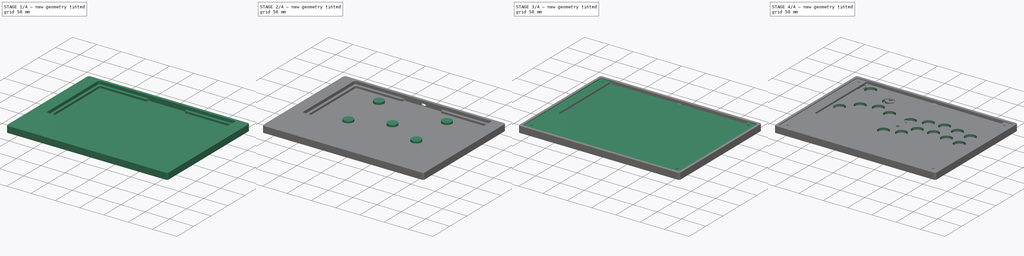
[diagram: build sequence overview — one tinted view per stage of 4, left to right]
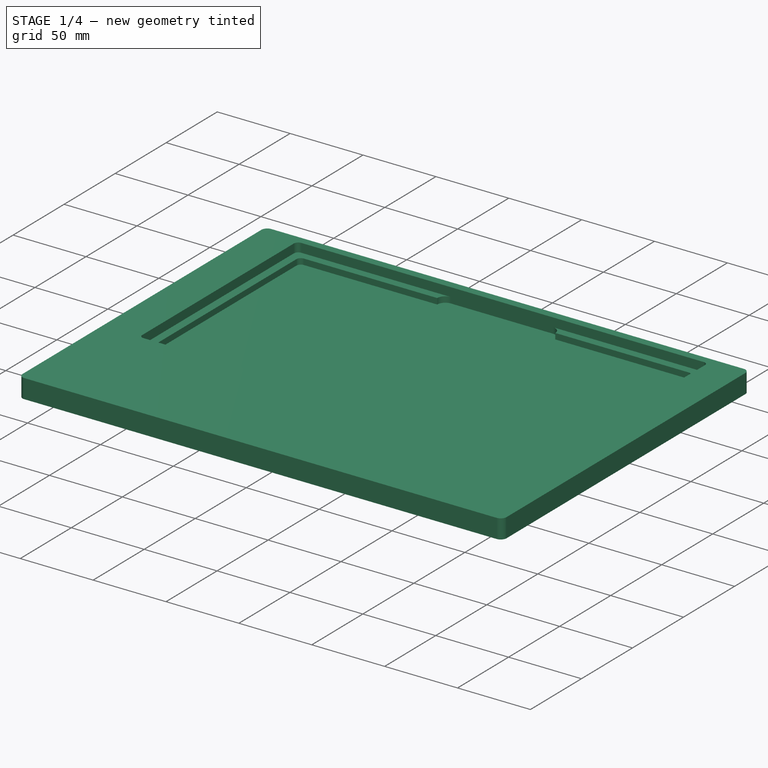
[diagram: stage 1 of 4 — iso view after this stage's code; geometry added in this stage tinted green]
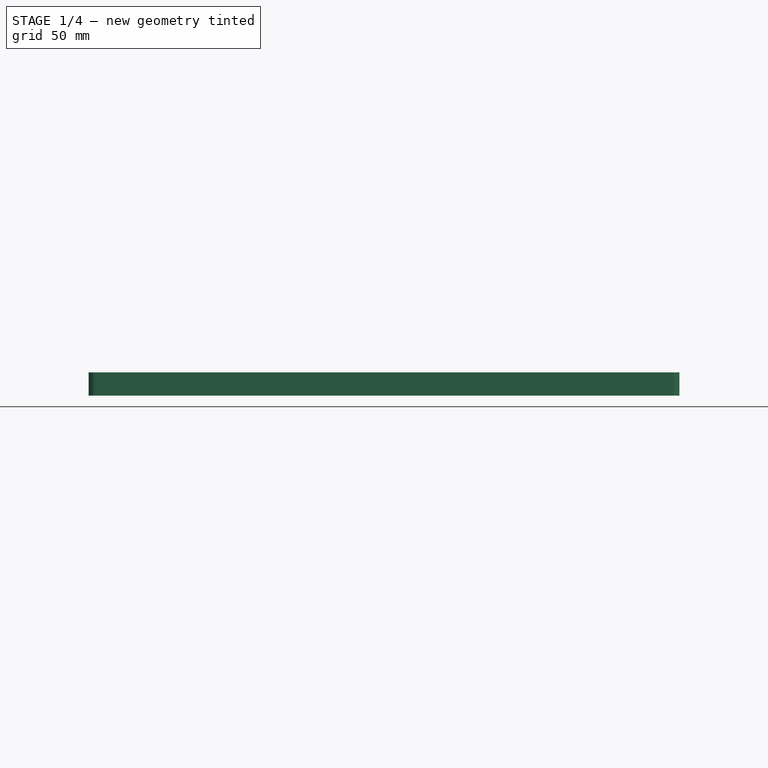
[diagram: stage 1 of 4 — front view after this stage's code; geometry added in this stage tinted green]
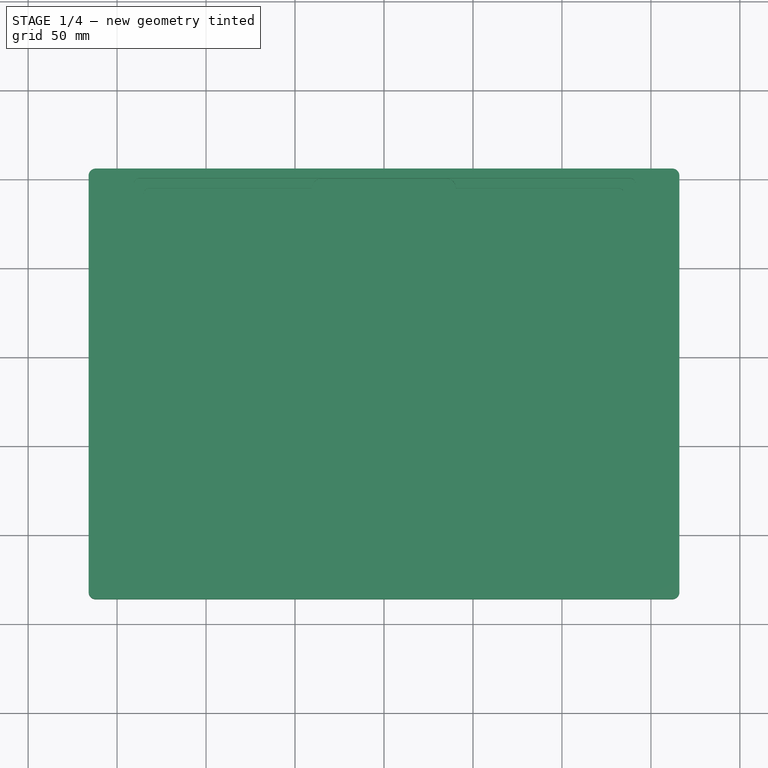
[diagram: stage 1 of 4 — top view after this stage's code; geometry added in this stage tinted green]
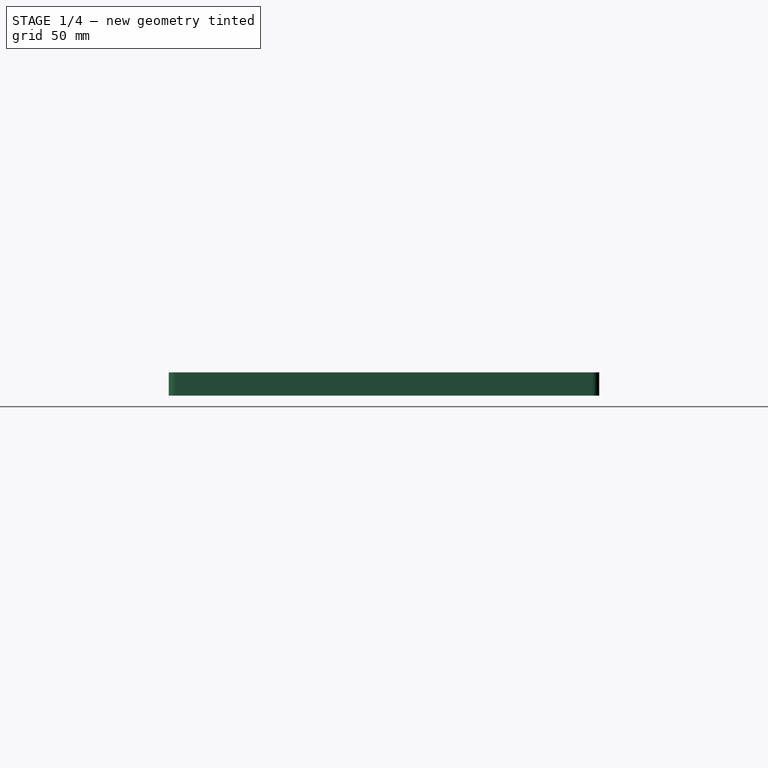
[diagram: stage 1 of 4 — right view after this stage's code; geometry added in this stage tinted green]
FCSTD DOCUMENT  (FreeCAD 0.21R33771 (Git))
Label: UdongCase.rev2.1
License: All rights reserved
LicenseURL: http://en.wikipedia.org/wiki/All_rights_reserved
objects: App::Link×89, Part::Feature×19, Sketcher::SketchObject×15, App::Part×10, PartDesign::Pocket×7, PartDesign::Pad×3, PartDesign::Hole×3, PartDesign::CoordinateSystem×3, App::DocumentObjectGroup×3, PartDesign::Body×2, Spreadsheet::Sheet×1, App::FeaturePython×1, App::MeasureDistance×1
note: 65 computed .brp shape members not serialized (recipe doc carries the construction recipe); baked Part::Feature solids carry a one-line shape summary decoded from their .brp

FEATURE [PartDesign::Body] Body001  label="CeilBody"
  Group = -> [Sketch007,Pad002,Sketch008,Sketch009,Hole001,Hole002,Sketch010,Hole003]
  Origin = -> Origin012
  Placement = pos=(0,0,5.11) rot=(0,0,1;0rad)
  Tip = -> Hole003
  expr: .Placement.Base.z = Spreadsheet.box_thickness - Spreadsheet.ceil_thickness + 0.01 mm
FEATURE [PartDesign::CoordinateSystem] LCS_Origin
  AttacherType = Attacher::AttachEngine3D
  MapMode = 2
  Support = -> [X_Axis014]
FEATURE [App::DocumentObjectGroup] Constraints
FEATURE [App::FeaturePython] Variables  # WARN: FeaturePython — macro-defined, semantics opaque (R4)
  Type = App::PropertyContainer
FEATURE [App::DocumentObjectGroup] Configurations
FEATURE [App::Part] Assembly
  AssemblyType = Part::Link
  Group = -> [LCS_Origin,Constraints,Variables,Configurations,Body001]
  Origin = -> Origin014
  Type = Assembly
FEATURE [PartDesign::CoordinateSystem] Local_CS_1531
  AttacherType = Attacher::AttachEngine3D
  MapMode = 2
  Support = -> [X_Axis001]
FEATURE [Part::Feature] Pcb_1531
  Placement = pos=(-210,40,0) rot=(0,0,1;0rad)
  shape: bbox 280 x 150 x 1 mm, 134 faces (baked)
FEATURE [Sketcher::SketchObject] PCB_Sketch_1531
  FullyConstrained = false
  sketch-geometry (8):
    g0: LineSegment StartX=136 StartY=-150 StartZ=0 EndX=-136 EndY=-150 EndZ=0
    g1: LineSegment StartX=-136 StartY=-7.1e-15 StartZ=0 EndX=136 EndY=9e-16 EndZ=0
    g2: LineSegment StartX=140 StartY=-4 StartZ=0 EndX=140 EndY=-146 EndZ=0
    g3: LineSegment StartX=-140 StartY=-146 StartZ=0 EndX=-140 EndY=-4 EndZ=0
    g4: ArcOfCircle CenterX=136 CenterY=-4 CenterZ=0 NormalX=0 NormalY=0 NormalZ=-1 AngleXU=1.5708 Radius=4 StartAngle=0 EndAngle=1.5708
    g5: ArcOfCircle CenterX=-136 CenterY=-146 CenterZ=0 NormalX=0 NormalY=0 NormalZ=-1 AngleXU=-1.5708 Radius=4 StartAngle=0 EndAngle=1.5708
    g6: ArcOfCircle CenterX=136 CenterY=-146 CenterZ=0 NormalX=0 NormalY=0 NormalZ=-1 AngleXU=-3.14159 Radius=4 StartAngle=0 EndAngle=1.5708
    g7: ArcOfCircle CenterX=-136 CenterY=-4 CenterZ=0 NormalX=0 NormalY=0 NormalZ=-1 AngleXU=1.06478e-07 Radius=4 StartAngle=0 EndAngle=1.5708
  constraints (8):
    c: Coincident(g3,g5)
    c: Coincident(g3,g7)
    c: Coincident(g0,g5)
    c: Coincident(g1,g7)
    c: Coincident(g0,g6)
    c: Coincident(g1,g4)
    c: Coincident(g2,g6)
    c: Coincident(g2,g4)
FEATURE [App::Part] Board_Geoms_1531
  Group = -> [Pcb_1531,PCB_Sketch_1531]
  Origin = -> Origin019
FEATURE [Part::Feature] Shape  label="C50_C_0603_1608Metric_c96c1e5c2c5""
  Placement = pos=(43.8,-73.4,0) rot=(0,0,1;0rad)
  shape: bbox 1.6 x 0.8 x 0.8 mm, 28 faces (baked)
FEATURE [Part::Feature] Shape001  label="R32_R_0402_1005Metric_3def5412ded""
  Placement = pos=(-5.86,-29.25,0) rot=(0,0,1;3.14159rad)
  shape: bbox 1 x 0.5 x 0.35 mm, 26 faces (baked)
FEATURE [Part::Feature] Shape002  label="R26_R_0603_1608Metric_21c035ecaa6""
  Placement = pos=(13.775,-134.9,0) rot=(0,0,1;0rad)
  shape: bbox 1.6 x 0.8 x 0.45 mm, 26 faces (baked)
FEATURE [Part::Feature] Shape003  label="U22_SOIC_16_39x99mm_P127mm_6378aad0377""
  Placement = pos=(2.525,-49.525,0) rot=(0,0,1;1.5708rad)
  shape: bbox 9.9 x 6 x 1.75 mm, 276 faces (baked)
FEATURE [App::Link] C50_C_0603_1608Metric_c96c1e5c2c5__ln_  label="C47_C_0603_1608Metric_5ed9ba1823f""
  LinkPlacement = pos=(100,-82.4,0) rot=(0,0,1;0rad)
  LinkedObject = -> Shape
  Placement = pos=(100,-82.4,0) rot=(0,0,1;0rad)
FEATURE [App::Link] R26_R_0603_1608Metric_21c035ecaa6__ln_  label="R29_R_0603_1608Metric_bb5f2daf42d""
  LinkPlacement = pos=(73.775,-72.9,0) rot=(0,0,1;0rad)
  LinkedObject = -> Shape002
  Placement = pos=(73.775,-72.9,0) rot=(0,0,1;0rad)
FEATURE [App::Link] C50_C_0603_1608Metric_c96c1e5c2c5__ln_001  label="C24_C_0603_1608Metric_a66f28ce9f9""
  LinkPlacement = pos=(-90.2,-53.4,0) rot=(0,0,1;0rad)
  LinkedObject = -> Shape
  Placement = pos=(-90.2,-53.4,0) rot=(0,0,1;0rad)
FEATURE [Part::Feature] Shape004  label="Y1_Crystal_SMD_3225-4Pin_3.2x2.5mm_24c05a89e76""
  Placement = pos=(-0.6,-40.55,0) rot=(0,0,1;0rad)
  shape: bbox 3.2 x 2.501 x 0.64 mm, 28 faces (baked)
FEATURE [App::Link] R32_R_0402_1005Metric_3def5412ded__ln_  label="R7_R_0402_1005Metric_df4f3317ca8""
  LinkPlacement = pos=(6.44,-6.9,0) rot=(0,0,1;0rad)
  LinkedObject = -> Shape001
  Placement = pos=(6.44,-6.9,0) rot=(0,0,1;0rad)
FEATURE [App::Link] C50_C_0603_1608Metric_c96c1e5c2c5__ln_002  label="C26_C_0603_1608Metric_c5d0a92b761""
  LinkPlacement = pos=(-118.2,-71.4,0) rot=(0,0,1;0rad)
  LinkedObject = -> Shape
  Placement = pos=(-118.2,-71.4,0) rot=(0,0,1;0rad)
FEATURE [Part::Feature] Shape005  label="C10_C_0402_1005Metric_8051af329a5""
  Placement = pos=(7.2,-32.3,0) rot=(0,0,1;0rad)
  shape: bbox 1 x 0.5 x 0.5 mm, 28 faces (baked)
FEATURE [App::Link] C50_C_0603_1608Metric_c96c1e5c2c5__ln_003  label="C42_C_0603_1608Metric_10c421a70c2""
  LinkPlacement = pos=(-2.2,-67.4,0) rot=(0,0,1;0rad)
  LinkedObject = -> Shape
  Placement = pos=(-2.2,-67.4,0) rot=(0,0,1;0rad)
FEATURE [App::Link] R32_R_0402_1005Metric_3def5412ded__ln_001  label="R3_R_0402_1005Metric_57ae49104c8""
  LinkPlacement = pos=(-2.49,-10.45,0) rot=(0,0,1;0rad)
  LinkedObject = -> Shape001
  Placement = pos=(-2.49,-10.45,0) rot=(0,0,1;0rad)
FEATURE [App::Link] C50_C_0603_1608Metric_c96c1e5c2c5__ln_004  label="C28_C_0603_1608Metric_c915e1eda8a""
  LinkPlacement = pos=(-30.2,-53.4,0) rot=(0,0,1;0rad)
  LinkedObject = -> Shape
  Placement = pos=(-30.2,-53.4,0) rot=(0,0,1;0rad)
FEATURE [Part::Feature] Shape006  label="K12_SOT_23_eb7cd9b5780""
  Placement = pos=(10,-138,0) rot=(0,0,1;3.14159rad)
  shape: bbox 2.5 x 3 x 1.2 mm, 76 faces (baked)
FEATURE [Part::Feature] Shape007  label="U1_SOT_223_39912d8b5e6""
  Placement = pos=(9.03,-15.226,0) rot=(0,0,-1;1.5708rad)
  shape: bbox 6.5 x 7 x 1.7 mm, 78 faces (baked)
FEATURE [App::Link] R26_R_0603_1608Metric_21c035ecaa6__ln_001  label="R14_R_0603_1608Metric_fb17d531891""
  LinkPlacement = pos=(-60.225,-52.9,0) rot=(0,0,1;0rad)
  LinkedObject = -> Shape002
  Placement = pos=(-60.225,-52.9,0) rot=(0,0,1;0rad)
FEATURE [App::Link] C50_C_0603_1608Metric_c96c1e5c2c5__ln_005  label="C51_C_0603_1608Metric_9cca8630005""
  LinkPlacement = pos=(70,-80.4,0) rot=(0,0,1;0rad)
  LinkedObject = -> Shape
  Placement = pos=(70,-80.4,0) rot=(0,0,1;0rad)
FEATURE [App::Link] R32_R_0402_1005Metric_3def5412ded__ln_002  label="R2_R_0402_1005Metric_2f3c0bcd080""
  LinkPlacement = pos=(2.3,-10.1,0) rot=(0,0,-1;1.5708rad)
  LinkedObject = -> Shape001
  Placement = pos=(2.3,-10.1,0) rot=(0,0,-1;1.5708rad)
FEATURE [App::Link] C50_C_0603_1608Metric_c96c1e5c2c5__ln_006  label="C52_C_0603_1608Metric_5cf961af84a""
  LinkPlacement = pos=(73.8,-71.4,0) rot=(0,0,1;0rad)
  LinkedObject = -> Shape
  Placement = pos=(73.8,-71.4,0) rot=(0,0,1;0rad)
FEATURE [App::Link] C10_C_0402_1005Metric_8051af329a5__ln_  label="C11_C_0402_1005Metric_d58156f1c66""
  LinkPlacement = pos=(8.67,-25.65,0) rot=(0,0,1;0rad)
  LinkedObject = -> Shape005
  Placement = pos=(8.67,-25.65,0) rot=(0,0,1;0rad)
FEATURE [App::Link] K12_SOT_23_eb7cd9b5780__ln_  label="K14_SOT_23_193b0e0585e""
  LinkPlacement = pos=(40,-78,0) rot=(0,0,1;3.14159rad)
  LinkedObject = -> Shape006
  Placement = pos=(40,-78,0) rot=(0,0,1;3.14159rad)
FEATURE [Part::Feature] Part__Feature  label="ConPins"
  shape: bbox 6 x 4.32 x 0.61 mm, 70 faces (baked)
FEATURE [Part::Feature] Part__Feature001  label="PcbPins"
  shape: bbox 6.9 x 0.99 x 0.3 mm, 122 faces (baked)
FEATURE [Part::Feature] Part__Feature002  label="Mold"
  shape: bbox 8.95 x 6.5 x 3.731 mm, 55 faces (baked)
FEATURE [Part::Feature] Part__Feature003  label="Frame"
  shape: bbox 8.95 x 7.3 x 4.2 mm, 323 faces (baked)
FEATURE [App::Part] HRO_TYPE_C_31_M_12  label="J1_HRO_TYPE_C_31_M_12_6a9f92c07a2""
  Group = -> [Part__Feature,Part__Feature001,Part__Feature002,Part__Feature003]
  Origin = -> Origin008
  Placement = pos=(4.494,0.55,0) rot=(0,0,1;3.14159rad)
FEATURE [App::Link] C10_C_0402_1005Metric_8051af329a5__ln_001  label="C15_C_0402_1005Metric_32920b63574""
  LinkPlacement = pos=(-5.9,-16.4,0) rot=(0,0,1;1.5708rad)
  LinkedObject = -> Shape005
  Placement = pos=(-5.9,-16.4,0) rot=(0,0,1;1.5708rad)
FEATURE [Part::Feature] Shape008  label="C20_C_0805_2012Metric_c2799205fcc""
  Placement = pos=(-116.8,-46.2,0) rot=(0,0,-1;1.5708rad)
  shape: bbox 1.25 x 2 x 1.25 mm, 28 faces (baked)
FEATURE [App::Link] C50_C_0603_1608Metric_c96c1e5c2c5__ln_007  label="C36_C_0603_1608Metric_a18fb9cf965""
  LinkPlacement = pos=(-60.2,-83.4,0) rot=(0,0,1;0rad)
  LinkedObject = -> Shape
  Placement = pos=(-60.2,-83.4,0) rot=(0,0,1;0rad)
FEATURE [App::Link] C10_C_0402_1005Metric_8051af329a5__ln_002  label="C3_C_0402_1005Metric_2ca5fab408e""
  LinkPlacement = pos=(6.47,-5.85,0) rot=(0,0,1;0rad)
  LinkedObject = -> Shape005
  Placement = pos=(6.47,-5.85,0) rot=(0,0,1;0rad)
FEATURE [App::Link] C50_C_0603_1608Metric_c96c1e5c2c5__ln_008  label="C30_C_0603_1608Metric_3292674c1e6""
  LinkPlacement = pos=(-118.2,-101.4,0) rot=(0,0,1;0rad)
  LinkedObject = -> Shape
  Placement = pos=(-118.2,-101.4,0) rot=(0,0,1;0rad)
FEATURE [App::Link] C10_C_0402_1005Metric_8051af329a5__ln_003  label="C12_C_0402_1005Metric_4aea76d61e9""
  LinkPlacement = pos=(8.67,-26.6,0) rot=(0,0,1;0rad)
  LinkedObject = -> Shape005
  Placement = pos=(8.67,-26.6,0) rot=(0,0,1;0rad)
FEATURE [App::Link] C50_C_0603_1608Metric_c96c1e5c2c5__ln_009  label="C37_C_0603_1608Metric_44cd4f96dfb""
  LinkPlacement = pos=(126,-106.4,0) rot=(0,0,1;0rad)
  LinkedObject = -> Shape
  Placement = pos=(126,-106.4,0) rot=(0,0,1;0rad)
FEATURE [App::Link] C50_C_0603_1608Metric_c96c1e5c2c5__ln_010  label="C49_C_0603_1608Metric_df72e46ba2a""
  LinkPlacement = pos=(40,-82.4,0) rot=(0,0,1;0rad)
  LinkedObject = -> Shape
  Placement = pos=(40,-82.4,0) rot=(0,0,1;0rad)
FEATURE [App::Link] C10_C_0402_1005Metric_8051af329a5__ln_004  label="C6_C_0402_1005Metric_80b337fe1a7""
  LinkPlacement = pos=(-0.95,-22.12,0) rot=(0,0,1;1.5708rad)
  LinkedObject = -> Shape005
  Placement = pos=(-0.95,-22.12,0) rot=(0,0,1;1.5708rad)
FEATURE [App::Link] C50_C_0603_1608Metric_c96c1e5c2c5__ln_011  label="C39_C_0603_1608Metric_eccfd1e353f""
  LinkPlacement = pos=(-20,-132.4,0) rot=(0,0,1;0rad)
  LinkedObject = -> Shape
  Placement = pos=(-20,-132.4,0) rot=(0,0,1;0rad)
FEATURE [App::Link] R32_R_0402_1005Metric_3def5412ded__ln_003  label="R30_R_0402_1005Metric_53f850a218d""
  LinkPlacement = pos=(-6.35,-30.99,0) rot=(0,0,1;1.5708rad)
  LinkedObject = -> Shape001
  Placement = pos=(-6.35,-30.99,0) rot=(0,0,1;1.5708rad)
FEATURE [App::Link] C10_C_0402_1005Metric_8051af329a5__ln_005  label="C4_C_0402_1005Metric_17d61923515""
  LinkPlacement = pos=(-1.95,-22.12,0) rot=(0,0,1;1.5708rad)
  LinkedObject = -> Shape005
  Placement = pos=(-1.95,-22.12,0) rot=(0,0,1;1.5708rad)
FEATURE [App::Link] R26_R_0603_1608Metric_21c035ecaa6__ln_002  label="R16_R_0603_1608Metric_ccc08d43b62""
  LinkPlacement = pos=(-118.225,-72.9,0) rot=(0,0,1;0rad)
  LinkedObject = -> Shape002
  Placement = pos=(-118.225,-72.9,0) rot=(0,0,1;0rad)
FEATURE [App::Link] R26_R_0603_1608Metric_21c035ecaa6__ln_003  label="R23_R_0603_1608Metric_8ae852cfb8c""
  LinkPlacement = pos=(-16.225,-124.9,0) rot=(0,0,1;0rad)
  LinkedObject = -> Shape002
  Placement = pos=(-16.225,-124.9,0) rot=(0,0,1;0rad)
FEATURE [App::Link] C10_C_0402_1005Metric_8051af329a5__ln_006  label="C18_C_0402_1005Metric_785087baeae""
  LinkPlacement = pos=(-2.98,-37.9,0) rot=(0,0,1;0rad)
  LinkedObject = -> Shape005
  Placement = pos=(-2.98,-37.9,0) rot=(0,0,1;0rad)
FEATURE [App::Link] K12_SOT_23_eb7cd9b5780__ln_001  label="K5_SOT_23_c54e9ac4579""
  LinkPlacement = pos=(-34,-90,0) rot=(0,0,1;3.14159rad)
  LinkedObject = -> Shape006
  Placement = pos=(-34,-90,0) rot=(0,0,1;3.14159rad)
FEATURE [App::Link] K12_SOT_23_eb7cd9b5780__ln_002  label="K8_SOT_23_c796a763239""
  LinkPlacement = pos=(126,-102,0) rot=(0,0,1;3.14159rad)
  LinkedObject = -> Shape006
  Placement = pos=(126,-102,0) rot=(0,0,1;3.14159rad)
FEATURE [App::Link] K12_SOT_23_eb7cd9b5780__ln_003  label="K7_SOT_23_def66e8df92""
  LinkPlacement = pos=(-64,-88,0) rot=(0,0,1;3.14159rad)
  LinkedObject = -> Shape006
  Placement = pos=(-64,-88,0) rot=(0,0,1;3.14159rad)
FEATURE [App::Link] C50_C_0603_1608Metric_c96c1e5c2c5__ln_012  label="C44_C_0603_1608Metric_8ad17236dae""
  LinkPlacement = pos=(73.8,-45.4,0) rot=(0,0,1;0rad)
  LinkedObject = -> Shape
  Placement = pos=(73.8,-45.4,0) rot=(0,0,1;0rad)
FEATURE [App::Link] K12_SOT_23_eb7cd9b5780__ln_004  label="K13_SOT_23_1b1c07f0015""
  LinkPlacement = pos=(100,-78,0) rot=(0,0,1;3.14159rad)
  LinkedObject = -> Shape006
  Placement = pos=(100,-78,0) rot=(0,0,1;3.14159rad)
FEATURE [App::Link] C10_C_0402_1005Metric_8051af329a5__ln_007  label="C8_C_0402_1005Metric_ff9e316a047""
  LinkPlacement = pos=(-5.3,-31,0) rot=(0,0,1;1.5708rad)
  LinkedObject = -> Shape005
  Placement = pos=(-5.3,-31,0) rot=(0,0,1;1.5708rad)
FEATURE [App::Link] C10_C_0402_1005Metric_8051af329a5__ln_008  label="C14_C_0402_1005Metric_135e438a0c9""
  LinkPlacement = pos=(4.5,-25.2,0) rot=(0,0,1;1.5708rad)
  LinkedObject = -> Shape005
  Placement = pos=(4.5,-25.2,0) rot=(0,0,1;1.5708rad)
FEATURE [App::Link] R26_R_0603_1608Metric_21c035ecaa6__ln_004  label="R22_R_0603_1608Metric_a8b4c104d3f""
  LinkPlacement = pos=(129.775,-98.9,0) rot=(0,0,1;0rad)
  LinkedObject = -> Shape002
  Placement = pos=(129.775,-98.9,0) rot=(0,0,1;0rad)
FEATURE [App::Link] C10_C_0402_1005Metric_8051af329a5__ln_009  label="C19_C_0402_1005Metric_96db7f3dd26""
  LinkPlacement = pos=(0.22,-37.9,0) rot=(0,0,1;0rad)
  LinkedObject = -> Shape005
  Placement = pos=(0.22,-37.9,0) rot=(0,0,1;0rad)
FEATURE [Part::Feature] Shape009  label="U2_SOT_23_6_b919badb54f""
  Placement = pos=(0.2,-13.2335,0) rot=(0,0,-1;1.5708rad)
  shape: bbox 2.9 x 2.8 x 1.55 mm, 124 faces (baked)
FEATURE [App::Link] C10_C_0402_1005Metric_8051af329a5__ln_010  label="C13_C_0402_1005Metric_c561e764fb2""
  LinkPlacement = pos=(3.02,-24.75,0) rot=(0,0,1;0rad)
  LinkedObject = -> Shape005
  Placement = pos=(3.02,-24.75,0) rot=(0,0,1;0rad)
FEATURE [App::Link] R32_R_0402_1005Metric_3def5412ded__ln_004  label="R9_R_0402_1005Metric_8897d69397d""
  LinkPlacement = pos=(-12.29,-16.7,0) rot=(0,0,1;3.14159rad)
  LinkedObject = -> Shape001
  Placement = pos=(-12.29,-16.7,0) rot=(0,0,1;3.14159rad)
FEATURE [App::Link] U22_SOIC_16_39x99mm_P127mm_6378aad0377__ln_  label="U23_SOIC_16_39x99mm_P127mm_be25011a4b5""
  LinkPlacement = pos=(18.635,-49.5,0) rot=(0,0,1;1.5708rad)
  LinkedObject = -> Shape003
  Placement = pos=(18.635,-49.5,0) rot=(0,0,1;1.5708rad)
FEATURE [App::Link] K12_SOT_23_eb7cd9b5780__ln_005  label="K1_SOT_23_865893f3b19""
  LinkPlacement = pos=(-94,-58,0) rot=(0,0,1;3.14159rad)
  LinkedObject = -> Shape006
  Placement = pos=(-94,-58,0) rot=(0,0,1;3.14159rad)
FEATURE [App::Link] C50_C_0603_1608Metric_c96c1e5c2c5__ln_013  label="C33_C_0603_1608Metric_33d0c5bf11b""
  LinkPlacement = pos=(-94,-94.4,0) rot=(0,0,1;0rad)
  LinkedObject = -> Shape
  Placement = pos=(-94,-94.4,0) rot=(0,0,1;0rad)
FEATURE [App::Link] R26_R_0603_1608Metric_21c035ecaa6__ln_005  label="R11_R_0603_1608Metric_d86542a4989""
  LinkPlacement = pos=(2,-22.625,0) rot=(0,0,-1;1.5708rad)
  LinkedObject = -> Shape002
  Placement = pos=(2,-22.625,0) rot=(0,0,-1;1.5708rad)
FEATURE [App::Link] R26_R_0603_1608Metric_21c035ecaa6__ln_006  label="R27_R_0603_1608Metric_0e33b4e58e1""
  LinkPlacement = pos=(103.775,-74.9,0) rot=(0,0,1;0rad)
  LinkedObject = -> Shape002
  Placement = pos=(103.775,-74.9,0) rot=(0,0,1;0rad)
FEATURE [Part::Feature] Shape010  label="U5_QFN-56-1EP_7x7mm_Pitch0.4mm_8d1bc4d90c8""
  Placement = pos=(0.08,-30.274,0) rot=(0,0,1;0rad)
  shape: bbox 7 x 7 x 0.92 mm, 350 faces (baked)
FEATURE [App::Link] R32_R_0402_1005Metric_3def5412ded__ln_005  label="R8_R_0402_1005Metric_e16a0006320""
  LinkPlacement = pos=(14.11,-6.5,0) rot=(0,0,1;0rad)
  LinkedObject = -> Shape001
  Placement = pos=(14.11,-6.5,0) rot=(0,0,1;0rad)
FEATURE [App::Link] K12_SOT_23_eb7cd9b5780__ln_006  label="K4_SOT_23_3e4a07b202c""
  LinkPlacement = pos=(-122,-106,0) rot=(0,0,1;3.14159rad)
  LinkedObject = -> Shape006
  Placement = pos=(-122,-106,0) rot=(0,0,1;3.14159rad)
FEATURE [App::Link] R26_R_0603_1608Metric_21c035ecaa6__ln_007  label="R25_R_0603_1608Metric_11cd58ee3bf""
  LinkPlacement = pos=(73.775,-46.9,0) rot=(0,0,1;0rad)
  LinkedObject = -> Shape002
  Placement = pos=(73.775,-46.9,0) rot=(0,0,1;0rad)
FEATURE [App::Link] R32_R_0402_1005Metric_3def5412ded__ln_006  label="R1_R_0402_1005Metric_650fd0fa91d""
  LinkPlacement = pos=(7.8,-30.8,0) rot=(0,0,1;0rad)
  LinkedObject = -> Shape001
  Placement = pos=(7.8,-30.8,0) rot=(0,0,1;0rad)
FEATURE [App::Link] K12_SOT_23_eb7cd9b5780__ln_007  label="K6_SOT_23_0a085770ca6""
  LinkPlacement = pos=(-94,-90,0) rot=(0,0,1;3.14159rad)
  LinkedObject = -> Shape006
  Placement = pos=(-94,-90,0) rot=(0,0,1;3.14159rad)
FEATURE [App::Link] C50_C_0603_1608Metric_c96c1e5c2c5__ln_014  label="C40_C_0603_1608Metric_97e5f20cd94""
  LinkPlacement = pos=(-16.2,-123.4,0) rot=(0,0,1;0rad)
  LinkedObject = -> Shape
  Placement = pos=(-16.2,-123.4,0) rot=(0,0,1;0rad)
FEATURE [App::Link] R26_R_0603_1608Metric_21c035ecaa6__ln_008  label="R20_R_0603_1608Metric_03efb36ce37""
  LinkPlacement = pos=(-90.225,-86.9,0) rot=(0,0,1;0rad)
  LinkedObject = -> Shape002
  Placement = pos=(-90.225,-86.9,0) rot=(0,0,1;0rad)
FEATURE [App::Link] C50_C_0603_1608Metric_c96c1e5c2c5__ln_015  label="C21_C_0603_1608Metric_d27d73a4e6d""
  LinkPlacement = pos=(-64,-60.4,0) rot=(0,0,1;0rad)
  LinkedObject = -> Shape
  Placement = pos=(-64,-60.4,0) rot=(0,0,1;0rad)
FEATURE [App::Link] R26_R_0603_1608Metric_21c035ecaa6__ln_009  label="R24_R_0603_1608Metric_e26bc699a82""
  LinkPlacement = pos=(-2.225,-68.9,0) rot=(0,0,1;0rad)
  LinkedObject = -> Shape002
  Placement = pos=(-2.225,-68.9,0) rot=(0,0,1;0rad)
FEATURE [App::Link] R26_R_0603_1608Metric_21c035ecaa6__ln_010  label="R15_R_0603_1608Metric_99d7860f7d8""
  LinkPlacement = pos=(-90.225,-54.9,0) rot=(0,0,1;0rad)
  LinkedObject = -> Shape002
  Placement = pos=(-90.225,-54.9,0) rot=(0,0,1;0rad)
FEATURE [App::Link] K12_SOT_23_eb7cd9b5780__ln_008  label="K10_SOT_23_823f3f7b337""
  LinkPlacement = pos=(-6,-72,0) rot=(0,0,1;3.14159rad)
  LinkedObject = -> Shape006
  Placement = pos=(-6,-72,0) rot=(0,0,1;3.14159rad)
FEATURE [App::Link] R26_R_0603_1608Metric_21c035ecaa6__ln_011  label="R18_R_0603_1608Metric_af1bb1786c9""
  LinkPlacement = pos=(-118.225,-102.9,0) rot=(0,0,1;0rad)
  LinkedObject = -> Shape002
  Placement = pos=(-118.225,-102.9,0) rot=(0,0,1;0rad)
FEATURE [App::Link] C50_C_0603_1608Metric_c96c1e5c2c5__ln_016  label="C29_C_0603_1608Metric_1b0acdc6366""
  LinkPlacement = pos=(-122,-110.4,0) rot=(0,0,1;0rad)
  LinkedObject = -> Shape
  Placement = pos=(-122,-110.4,0) rot=(0,0,1;0rad)
FEATURE [App::Link] C50_C_0603_1608Metric_c96c1e5c2c5__ln_017  label="C46_C_0603_1608Metric_1f436d3a905""
  LinkPlacement = pos=(13.8,-133.4,0) rot=(0,0,1;0rad)
  LinkedObject = -> Shape
  Placement = pos=(13.8,-133.4,0) rot=(0,0,1;0rad)
FEATURE [App::Link] R32_R_0402_1005Metric_3def5412ded__ln_007  label="R13_R_0402_1005Metric_abb4721bf58""
  LinkPlacement = pos=(-1.282,-36.031,0) rot=(0,0,-1;1.5708rad)
  LinkedObject = -> Shape001
  Placement = pos=(-1.282,-36.031,0) rot=(0,0,-1;1.5708rad)
FEATURE [App::Link] C50_C_0603_1608Metric_c96c1e5c2c5__ln_018  label="C38_C_0603_1608Metric_d5bef6ac2ba""
  LinkPlacement = pos=(129.8,-97.4,0) rot=(0,0,1;0rad)
  LinkedObject = -> Shape
  Placement = pos=(129.8,-97.4,0) rot=(0,0,1;0rad)
FEATURE [App::Link] K12_SOT_23_eb7cd9b5780__ln_009  label="K2_SOT_23_ac675bc4a8c""
  LinkPlacement = pos=(-122,-76,0) rot=(0,0,1;3.14159rad)
  LinkedObject = -> Shape006
  Placement = pos=(-122,-76,0) rot=(0,0,1;3.14159rad)
FEATURE [App::Link] C20_C_0805_2012Metric_c2799205fcc__ln_  label="C1_C_0805_2012Metric_0a73e855881""
  LinkPlacement = pos=(7.15,-9.55,0) rot=(0,0,1;0rad)
  LinkedObject = -> Shape008
  Placement = pos=(7.15,-9.55,0) rot=(0,0,1;0rad)
FEATURE [App::Link] C20_C_0805_2012Metric_c2799205fcc__ln_001  label="C2_C_0805_2012Metric_062222af47f""
  LinkPlacement = pos=(9.985,-21.297,0) rot=(0,0,1;0rad)
  LinkedObject = -> Shape008
  Placement = pos=(9.985,-21.297,0) rot=(0,0,1;0rad)
FEATURE [Part::Feature] Shape011  label="D1_LED_0805_2012Metric_8ef331ff65c""
  Placement = pos=(11.2825,-6.5,0) rot=(0,0,1;0rad)
  shape: bbox 2 x 1.25 x 1.1 mm, 50 faces (baked)
FEATURE [App::Link] K12_SOT_23_eb7cd9b5780__ln_010  label="K15_SOT_23_6939684d3e7""
  LinkPlacement = pos=(70,-76,0) rot=(0,0,1;3.14159rad)
  LinkedObject = -> Shape006
  Placement = pos=(70,-76,0) rot=(0,0,1;3.14159rad)
FEATURE [App::Link] K12_SOT_23_eb7cd9b5780__ln_011  label="K9_SOT_23_8c49c6d764d""
  LinkPlacement = pos=(-20,-128,0) rot=(0,0,1;3.14159rad)
  LinkedObject = -> Shape006
  Placement = pos=(-20,-128,0) rot=(0,0,1;3.14159rad)
FEATURE [App::Link] C50_C_0603_1608Metric_c96c1e5c2c5__ln_019  label="C41_C_0603_1608Metric_5efbc6fcce8""
  LinkPlacement = pos=(-6,-76.4,0) rot=(0,0,1;0rad)
  LinkedObject = -> Shape
  Placement = pos=(-6,-76.4,0) rot=(0,0,1;0rad)
FEATURE [App::Link] R26_R_0603_1608Metric_21c035ecaa6__ln_012  label="R28_R_0603_1608Metric_ca803929422""
  LinkPlacement = pos=(43.775,-74.9,0) rot=(0,0,1;0rad)
  LinkedObject = -> Shape002
  Placement = pos=(43.775,-74.9,0) rot=(0,0,1;0rad)
FEATURE [App::Link] C50_C_0603_1608Metric_c96c1e5c2c5__ln_020  label="C27_C_0603_1608Metric_68609b71c4c""
  LinkPlacement = pos=(-34,-62.4,0) rot=(0,0,1;0rad)
  LinkedObject = -> Shape
  Placement = pos=(-34,-62.4,0) rot=(0,0,1;0rad)
FEATURE [App::Link] C50_C_0603_1608Metric_c96c1e5c2c5__ln_021  label="C48_C_0603_1608Metric_2be96427cfd""
  LinkPlacement = pos=(103.8,-73.4,0) rot=(0,0,1;0rad)
  LinkedObject = -> Shape
  Placement = pos=(103.8,-73.4,0) rot=(0,0,1;0rad)
FEATURE [App::Link] K12_SOT_23_eb7cd9b5780__ln_012  label="K3_SOT_23_0b814825c75""
  LinkPlacement = pos=(-34,-58,0) rot=(0,0,1;3.14159rad)
  LinkedObject = -> Shape006
  Placement = pos=(-34,-58,0) rot=(0,0,1;3.14159rad)
FEATURE [App::Link] R26_R_0603_1608Metric_21c035ecaa6__ln_013  label="R10_R_0603_1608Metric_8eb79d176a4""
  LinkPlacement = pos=(0.29,-22.625,0) rot=(0,0,-1;1.5708rad)
  LinkedObject = -> Shape002
  Placement = pos=(0.29,-22.625,0) rot=(0,0,-1;1.5708rad)
FEATURE [App::Link] K12_SOT_23_eb7cd9b5780__ln_013  label="K0_SOT_23_2c86b474dd3""
  LinkPlacement = pos=(-64,-56,0) rot=(0,0,1;3.14159rad)
  LinkedObject = -> Shape006
  Placement = pos=(-64,-56,0) rot=(0,0,1;3.14159rad)
FEATURE [App::Link] R26_R_0603_1608Metric_21c035ecaa6__ln_014  label="R17_R_0603_1608Metric_c4c6afb5600""
  LinkPlacement = pos=(-30.225,-54.9,0) rot=(0,0,1;0rad)
  LinkedObject = -> Shape002
  Placement = pos=(-30.225,-54.9,0) rot=(0,0,1;0rad)
FEATURE [App::Link] R26_R_0603_1608Metric_21c035ecaa6__ln_015  label="R21_R_0603_1608Metric_460de85fd74""
  LinkPlacement = pos=(-60.225,-84.9,0) rot=(0,0,1;0rad)
  LinkedObject = -> Shape002
  Placement = pos=(-60.225,-84.9,0) rot=(0,0,1;0rad)
FEATURE [App::Link] C10_C_0402_1005Metric_8051af329a5__ln_011  label="C7_C_0402_1005Metric_0f16a34a551""
  LinkPlacement = pos=(-4.7,-27,0) rot=(0,0,1;1.5708rad)
  LinkedObject = -> Shape005
  Placement = pos=(-4.7,-27,0) rot=(0,0,1;1.5708rad)
FEATURE [App::Link] C50_C_0603_1608Metric_c96c1e5c2c5__ln_022  label="C32_C_0603_1608Metric_5ba8dae56c2""
  LinkPlacement = pos=(-30.2,-85.4,0) rot=(0,0,1;0rad)
  LinkedObject = -> Shape
  Placement = pos=(-30.2,-85.4,0) rot=(0,0,1;0rad)
FEATURE [App::Link] R32_R_0402_1005Metric_3def5412ded__ln_008  label="R5_R_0402_1005Metric_cc74251693b""
  LinkPlacement = pos=(-15.51,-19.75,0) rot=(0,0,1;3.14159rad)
  LinkedObject = -> Shape001
  Placement = pos=(-15.51,-19.75,0) rot=(0,0,1;3.14159rad)
FEATURE [App::Link] C50_C_0603_1608Metric_c96c1e5c2c5__ln_023  label="C23_C_0603_1608Metric_da1e79a7413""
  LinkPlacement = pos=(-94,-62.4,0) rot=(0,0,1;0rad)
  LinkedObject = -> Shape
  Placement = pos=(-94,-62.4,0) rot=(0,0,1;0rad)
FEATURE [App::Link] C50_C_0603_1608Metric_c96c1e5c2c5__ln_024  label="C34_C_0603_1608Metric_e05c6801456""
  LinkPlacement = pos=(-90.2,-85.4,0) rot=(0,0,1;0rad)
  LinkedObject = -> Shape
  Placement = pos=(-90.2,-85.4,0) rot=(0,0,1;0rad)
FEATURE [App::Link] R26_R_0603_1608Metric_21c035ecaa6__ln_016  label="R19_R_0603_1608Metric_3c8b2fa6c45""
  LinkPlacement = pos=(-30.225,-86.9,0) rot=(0,0,1;0rad)
  LinkedObject = -> Shape002
  Placement = pos=(-30.225,-86.9,0) rot=(0,0,1;0rad)
FEATURE [App::Link] C50_C_0603_1608Metric_c96c1e5c2c5__ln_025  label="C31_C_0603_1608Metric_37f6c312067""
  LinkPlacement = pos=(-34,-94.4,0) rot=(0,0,1;0rad)
  LinkedObject = -> Shape
  Placement = pos=(-34,-94.4,0) rot=(0,0,1;0rad)
FEATURE [App::Link] C50_C_0603_1608Metric_c96c1e5c2c5__ln_026  label="C35_C_0603_1608Metric_3832b30084e""
  LinkPlacement = pos=(-64,-92.4,0) rot=(0,0,1;0rad)
  LinkedObject = -> Shape
  Placement = pos=(-64,-92.4,0) rot=(0,0,1;0rad)
FEATURE [App::Link] C10_C_0402_1005Metric_8051af329a5__ln_012  label="C9_C_0402_1005Metric_59282185aa5""
  LinkPlacement = pos=(-0.266,-36.057,0) rot=(0,0,-1;1.5708rad)
  LinkedObject = -> Shape005
  Placement = pos=(-0.266,-36.057,0) rot=(0,0,-1;1.5708rad)
FEATURE [App::Link] C50_C_0603_1608Metric_c96c1e5c2c5__ln_027  label="C43_C_0603_1608Metric_aba2d212b0c""
  LinkPlacement = pos=(70,-54.4,0) rot=(0,0,1;0rad)
  LinkedObject = -> Shape
  Placement = pos=(70,-54.4,0) rot=(0,0,1;0rad)
FEATURE [App::Link] C10_C_0402_1005Metric_8051af329a5__ln_013  label="C5_C_0402_1005Metric_f8548dd8e42""
  LinkPlacement = pos=(0.75,-36.057,0) rot=(0,0,-1;1.5708rad)
  LinkedObject = -> Shape005
  Placement = pos=(0.75,-36.057,0) rot=(0,0,-1;1.5708rad)
FEATURE [App::Link] C50_C_0603_1608Metric_c96c1e5c2c5__ln_028  label="C22_C_0603_1608Metric_26d4b7af8f2""
  LinkPlacement = pos=(-60.2,-51.4,0) rot=(0,0,1;0rad)
  LinkedObject = -> Shape
  Placement = pos=(-60.2,-51.4,0) rot=(0,0,1;0rad)
FEATURE [App::Link] C50_C_0603_1608Metric_c96c1e5c2c5__ln_029  label="C45_C_0603_1608Metric_e114d69fa13""
  LinkPlacement = pos=(10,-142.4,0) rot=(0,0,1;0rad)
  LinkedObject = -> Shape
  Placement = pos=(10,-142.4,0) rot=(0,0,1;0rad)
FEATURE [App::Link] C50_C_0603_1608Metric_c96c1e5c2c5__ln_030  label="C25_C_0603_1608Metric_089b72191b7""
  LinkPlacement = pos=(-122,-80.4,0) rot=(0,0,1;0rad)
  LinkedObject = -> Shape
  Placement = pos=(-122,-80.4,0) rot=(0,0,1;0rad)
FEATURE [App::Link] K12_SOT_23_eb7cd9b5780__ln_014  label="K11_SOT_23_4e8621994a1""
  LinkPlacement = pos=(70,-50,0) rot=(0,0,1;3.14159rad)
  LinkedObject = -> Shape006
  Placement = pos=(70,-50,0) rot=(0,0,1;3.14159rad)
FEATURE [Part::Feature] Shape012  label="J2_JST_B3B_PH_K_0813409b6cc"[2]"
  Placement = pos=(-26.4,-4.2,1) rot=(-1,0,0;1.5708rad)
  shape: bbox 7.9 x 9.4 x 4.55 mm, 121 faces (baked)
FEATURE [App::Part] Top_1531
  Group = -> [Shape,Shape001,Shape002,Shape003,C50_C_0603_1608Metric_c96c1e5c2c5__ln_,R26_R_0603_1608Metric_21c035ecaa6__ln_,C50_C_0603_1608Metric_c96c1e5c2c5__ln_001,Shape004,R32_R_0402_1005Metric_3def5412ded__ln_,C50_C_0603_1608Metric_c96c1e5c2c5__ln_002,Shape005,C50_C_0603_1608Metric_c96c1e5c2c5__ln_003,R32_R_0402_1005Metric_3def5412ded__ln_001,C50_C_0603_1608Metric_c96c1e5c2c5__ln_004,Shape006,Shape007,+87 more]
  Origin = -> Origin003
FEATURE [App::Part] Step_Models_1531
  Group = -> [Top_1531]
  Origin = -> Origin002
FEATURE [App::Part] Board_1531  label="mainboard"
  Group = -> [Local_CS_1531,Board_Geoms_1531,Step_Models_1531]
  Origin = -> Origin001
  Placement = pos=(0,0,7) rot=(0,1,0;3.14159rad)
  expr: .Placement.Base.z = Spreadsheet.pcb_bottom
FEATURE [PartDesign::CoordinateSystem] Local_CS_f4e002
  AttacherType = Attacher::AttachEngine3D
  MapMode = 2
  Support = -> [X_Axis020]
FEATURE [Part::Feature] Pcb_f4e002
  Placement = pos=(-210,40,0) rot=(0,0,1;0rad)
  shape: bbox 320 x 230 x 1.6 mm, 204 faces (baked)
FEATURE [Sketcher::SketchObject] PCB_Sketch_f4e002
  FullyConstrained = false
  sketch-geometry (8):
    g0: LineSegment StartX=156 StartY=-230 StartZ=0 EndX=-156 EndY=-230 EndZ=0
    g1: LineSegment StartX=-160 StartY=-226 StartZ=0 EndX=-160 EndY=-4 EndZ=0
    g2: LineSegment StartX=-156 StartY=-6.2e-15 StartZ=0 EndX=156 EndY=-9e-16 EndZ=0
    g3: LineSegment StartX=160 StartY=-4 StartZ=0 EndX=160 EndY=-226 EndZ=0
    g4: ArcOfCircle CenterX=-156 CenterY=-226 CenterZ=0 NormalX=0 NormalY=0 NormalZ=-1 AngleXU=-1.5708 Radius=4 StartAngle=0 EndAngle=1.5708
    g5: ArcOfCircle CenterX=156 CenterY=-226 CenterZ=0 NormalX=0 NormalY=0 NormalZ=-1 AngleXU=-3.14159 Radius=4 StartAngle=0 EndAngle=1.5708
    g6: ArcOfCircle CenterX=156 CenterY=-4 CenterZ=0 NormalX=0 NormalY=0 NormalZ=-1 AngleXU=1.5708 Radius=4 StartAngle=0 EndAngle=1.5708
    g7: ArcOfCircle CenterX=-156 CenterY=-4 CenterZ=0 NormalX=0 NormalY=0 NormalZ=-1 AngleXU=1.06478e-07 Radius=4 StartAngle=0 EndAngle=1.5708
  constraints (8):
    c: Coincident(g1,g4)
    c: Coincident(g1,g7)
    c: Coincident(g0,g4)
    c: Coincident(g2,g7)
    c: Coincident(g0,g5)
    c: Coincident(g2,g6)
    c: Coincident(g3,g5)
    c: Coincident(g3,g6)
FEATURE [App::Part] Board_Geoms_f4e002  label="Board_Geoms_f4e004"
  Group = -> [Pcb_f4e002,PCB_Sketch_f4e002]
  Origin = -> Origin021
FEATURE [App::Part] Step_Models_f4e002  label="Step_Models_f4e004"
  Origin = -> Origin022
FEATURE [App::Part] Board_f4e002  label="mainboard_top_plate001"
  Group = -> [Local_CS_f4e002,Board_Geoms_f4e002,Step_Models_f4e002]
  Origin = -> Origin020
  Placement = pos=(-5e-16,0,11.5) rot=(0,1,0;3.14159rad)
  expr: .Placement.Base.z = Spreadsheet.topplate_alt
FEATURE [Sketcher::SketchObject] Sketch
  FullyConstrained = true
  MapMode = 2
  Support = -> [XY_Plane]
  expr: Constraints[0] = Spreadsheet.box_width
  expr: Constraints[1] = Spreadsheet.box_height
  expr: Constraints[3] = Spreadsheet.wall_thickness
  sketch-geometry (13):
    g0: LineSegment StartX=-162 StartY=6 StartZ=0 EndX=162 EndY=6 EndZ=0
    g1: LineSegment StartX=166 StartY=2 StartZ=0 EndX=166 EndY=-232 EndZ=0
    g2: LineSegment StartX=162 StartY=-236 StartZ=0 EndX=-162 EndY=-236 EndZ=0
    g3: LineSegment StartX=-166 StartY=-232 StartZ=0 EndX=-166 EndY=2 EndZ=0
    g4: GeomPoint X=0 Y=6 Z=0
    g5: ArcOfCircle CenterX=-162 CenterY=2 CenterZ=0 NormalX=0 NormalY=0 NormalZ=1 AngleXU=0 Radius=4 StartAngle=1.5708 EndAngle=3.14159
    g6: GeomPoint X=-166 Y=6 Z=0
    g7: ArcOfCircle CenterX=-162 CenterY=-232 CenterZ=0 NormalX=0 NormalY=0 NormalZ=1 AngleXU=0 Radius=4 StartAngle=3.14159 EndAngle=4.71239
    g8: GeomPoint X=-166 Y=-236 Z=0
    g9: ArcOfCircle CenterX=162 CenterY=-232 CenterZ=0 NormalX=0 NormalY=0 NormalZ=1 AngleXU=0 Radius=4 StartAngle=4.71239 EndAngle=6.28319
    g10: GeomPoint X=166 Y=-236 Z=0
    g11: ArcOfCircle CenterX=162 CenterY=2 CenterZ=0 NormalX=0 NormalY=0 NormalZ=1 AngleXU=0 Radius=4 StartAngle=-6.12e-13 EndAngle=1.5708
    g12: GeomPoint X=166 Y=6 Z=0
  constraints (29):
    c: DistanceX(g6,g12) = 332
    c: DistanceY(g10,g12) = 242
    c: PointOnObject(g4,g-2)
    c: DistanceY(g-1,g4) = 6
    c: Symmetric(g12,g6,g4)
    c: Vertical(g3)
    c: Vertical(g1)
    c: Horizontal(g0)
    c: Horizontal(g2)
    c: PointOnObject(g6,g0)
    c: PointOnObject(g6,g3)
    c: Tangent(g0,g5) = 1.5708
    c: Tangent(g3,g5) = 1.5708
    c: PointOnObject(g8,g3)
    c: PointOnObject(g8,g2)
    c: Tangent(g3,g7) = 1.5708
    c: Tangent(g2,g7) = 1.5708
    c: PointOnObject(g10,g2)
    c: PointOnObject(g10,g1)
    c: Tangent(g2,g9) = 1.5708
    c: Tangent(g1,g9) = 1.5708
    c: PointOnObject(g12,g1)
    c: PointOnObject(g12,g0)
    c: Tangent(g1,g11) = 1.5708
    c: Tangent(g0,g11) = 1.5708
    c: Equal(g11,g5)
    c: Equal(g5,g7)
    c: Equal(g7,g9)
    c: Radius(g5) = 4
FEATURE [PartDesign::Pad] Pad
  Direction = (0,0,1)
  Length = 13.1
  Length2 = 10
  Profile = -> Sketch
  ReferenceAxis = -> Sketch [N_Axis]
  Type = 0
  expr: Length = Spreadsheet.box_thickness
FEATURE [Sketcher::SketchObject] Sketch001
  AttachmentOffset = pos=(0,0,13.1) rot=(0,0,1;0rad)
  FullyConstrained = true
  MapMode = 5
  Placement = pos=(0,0,13.1) rot=(0,0,1;0rad)
  Support = -> [XY_Plane]
  expr: .AttachmentOffset.Base.z = Spreadsheet.box_thickness
  expr: Constraints[12] = -5 mm
  expr: Constraints[13] = Spreadsheet.pcb_width - 10 mm
  expr: Constraints[21] = Spreadsheet.pcb_height - 10 mm
  sketch-geometry (15):
    g0: LineSegment StartX=135 StartY=-8 StartZ=0 EndX=135 EndY=-142 EndZ=0
    g1: LineSegment StartX=132 StartY=-145 StartZ=0 EndX=-132 EndY=-145 EndZ=0
    g2: LineSegment StartX=-135 StartY=-142 StartZ=0 EndX=-135 EndY=-8 EndZ=0
    g3: ArcOfCircle CenterX=-132 CenterY=-8 CenterZ=0 NormalX=0 NormalY=0 NormalZ=1 AngleXU=0 Radius=3 StartAngle=1.57079 EndAngle=3.14159
    g4: ArcOfCircle CenterX=132 CenterY=-8 CenterZ=0 NormalX=0 NormalY=0 NormalZ=1 AngleXU=0 Radius=3 StartAngle=1e-16 EndAngle=1.5708
    g5: ArcOfCircle CenterX=132 CenterY=-142 CenterZ=0 NormalX=0 NormalY=0 NormalZ=1 AngleXU=0 Radius=3 StartAngle=4.71239 EndAngle=6.28319
    g6: GeomPoint X=135 Y=-145 Z=0
    g7: ArcOfCircle CenterX=-132 CenterY=-142 CenterZ=0 NormalX=0 NormalY=0 NormalZ=1 AngleXU=0 Radius=3 StartAngle=3.14159 EndAngle=4.71239
    g8: GeomPoint X=-135 Y=-145 Z=0
    g9: LineSegment StartX=-300 StartY=-5 StartZ=0 EndX=300 EndY=-5 EndZ=0
    g10: LineSegment StartX=35 StartY=0.5 StartZ=0 EndX=-35 EndY=0.5 EndZ=0
    g11: LineSegment StartX=-132 StartY=-5 StartZ=0 EndX=-40.5 EndY=-5 EndZ=0
    g12: ArcOfCircle CenterX=-35 CenterY=-5 CenterZ=0 NormalX=0 NormalY=0 NormalZ=1 AngleXU=0 Radius=5.5 StartAngle=1.5708 EndAngle=3.14159
    g13: LineSegment StartX=40.5 StartY=-5 StartZ=0 EndX=132 EndY=-5 EndZ=0
    g14: ArcOfCircle CenterX=35 CenterY=-5 CenterZ=0 NormalX=0 NormalY=0 NormalZ=1 AngleXU=0 Radius=5.5 StartAngle=1e-16 EndAngle=1.5708
  constraints (39):
    c: Horizontal(g1)
    c: Vertical(g2)
    c: Tangent(g2,g3) = 1.5708
    c: Tangent(g0,g4) = 1.5708
    c: PointOnObject(g6,g0)
    c: PointOnObject(g6,g1)
    c: Tangent(g0,g5) = 1.5708
    c: Tangent(g1,g5) = 1.5708
    c: PointOnObject(g8,g2)
    c: PointOnObject(g8,g1)
    c: Tangent(g2,g7) = 1.5708
    c: Tangent(g1,g7) = 1.5708
    c: DistanceY(g-1,g9) = -5
    c: DistanceX(g2,g0) = 270
    c: Symmetric(g2,g0,g-2)
    c: DistanceX(g9,g9) = 600
    c: Symmetric(g9,g9,g-2)
    c: Coincident(g11,g3)
    c: Horizontal(g11)
    c: Tangent(g10,g12) = -1.5708
    c: Radius(g12) = 5.5
    c: DistanceY(g1,g4) = 140
    c: PointOnObject(g4,g9)
    c: Angle(g12) = 1.5708
    c: Equal(g0,g2)
    c: Angle(g4) = 1.5708
    c: Equal(g3,g4)
    c: Equal(g5,g4)
    c: Equal(g7,g4)
    c: Radius(g4) = 3
    c: Coincident(g11,g12)
    c: PointOnObject(g13,g9)
    c: Tangent(g10,g14) = -1.5708
    c: Horizontal(g10)
    c: Angle(g14) = 1.5708
    c: Coincident(g14,g13)
    c: DistanceX(g10,g10) = 70
    c: Symmetric(g12,g14,g-2)
    c: Coincident(g13,g4)
FEATURE [PartDesign::Pocket] Pocket  label="MainPocket"
  BaseFeature = -> Pad
  Direction = (0,0,-1)
  Length = 10.1
  Length2 = 5
  Profile = -> Sketch001
  ReferenceAxis = -> Sketch001 [N_Axis]
  Type = 0
  expr: Length = Spreadsheet.box_thickness - Spreadsheet.box_bottom_thickness
FEATURE [Sketcher::SketchObject] Sketch012
  FullyConstrained = true
  MapMode = 5
  Support = -> [XY_Plane014]
  sketch-geometry (5):
    g0: Circle CenterX=-70 CenterY=-120 CenterZ=0 NormalX=0 NormalY=0 NormalZ=1 AngleXU=0 Radius=10
    g1: Circle CenterX=70 CenterY=-120 CenterZ=0 NormalX=0 NormalY=0 NormalZ=1 AngleXU=0 Radius=10
    g2: Circle CenterX=70 CenterY=-30 CenterZ=0 NormalX=0 NormalY=0 NormalZ=1 AngleXU=0 Radius=10
    g3: Circle CenterX=0 CenterY=-90 CenterZ=0 NormalX=0 NormalY=0 NormalZ=1 AngleXU=0 Radius=10
    g4: Circle CenterX=-70 CenterY=-30 CenterZ=0 NormalX=0 NormalY=0 NormalZ=1 AngleXU=0 Radius=10
  constraints (15):
    c: DistanceY(g0) = -120
    c: Vertical(g1,g2)
    c: DistanceY(g1) = -120
    c: Equal(g1,g0)
    c: PointOnObject(g3,g-2)
    c: DistanceY(g3) = -90
    c: Equal(g4,g0)
    c: Vertical(g4,g0)
    c: Horizontal(g4,g2)
    c: Equal(g3,g2)
    c: Equal(g2,g1)
    c: Radius(g2) = 10
    c: DistanceX(g0) = -70
    c: DistanceY(g4) = -30
    c: DistanceX(g2) = 70
FEATURE [Sketcher::SketchObject] Sketch013
  AttachmentOffset = pos=(0,0,7) rot=(0,0,1;0rad)
  FullyConstrained = true
  MapMode = 5
  Placement = pos=(0,0,7) rot=(0,0,1;0rad)
  Support = -> [XY_Plane]
  expr: .AttachmentOffset.Base.z = Spreadsheet.pcb_bottom
  sketch-geometry (5):
    g0: Circle CenterX=-70 CenterY=-30 CenterZ=0 NormalX=0 NormalY=0 NormalZ=1 AngleXU=0 Radius=3.75
    g1: Circle CenterX=-70 CenterY=-120 CenterZ=0 NormalX=0 NormalY=0 NormalZ=1 AngleXU=0 Radius=3.75
    g2: Circle CenterX=70 CenterY=-120 CenterZ=0 NormalX=0 NormalY=0 NormalZ=1 AngleXU=0 Radius=3.75
    g3: Circle CenterX=70 CenterY=-30 CenterZ=0 NormalX=0 NormalY=0 NormalZ=1 AngleXU=0 Radius=3.75
    g4: Circle CenterX=0 CenterY=-90 CenterZ=0 NormalX=0 NormalY=0 NormalZ=1 AngleXU=0 Radius=3.75
  constraints (14):
    c: DistanceX(g0) = -70
    c: Vertical(g0,g1)
    c: DistanceY(g0) = -30
    c: DistanceY(g1) = -120
    c: Vertical(g2,g3)
    c: DistanceY(g2) = -120
    c: Equal(g2,g1)
    c: Equal(g1,g0)
    c: Equal(g0,g3)
    c: Diameter(g0) = 7.5
    c: Symmetric(g3,g0,g-2)
    c: PointOnObject(g4,g-2)
    c: DistanceY(g4) = -90
    c: Equal(g4,g1)
FEATURE [Sketcher::SketchObject] Sketch015
  AttachmentOffset = pos=(0,0,-0.5) rot=(0,0,1;0rad)
  FullyConstrained = true
  MapMode = 5
  Placement = pos=(0,0.5,1e-16) rot=(1,0,0;1.5708rad)
  Support = -> [XZ_Plane]
  expr: Constraints[7] = Spreadsheet.box_bottom_thickness
  sketch-geometry (5):
    g0: ArcOfCircle CenterX=2.75 CenterY=5.25 CenterZ=0 NormalX=0 NormalY=0 NormalZ=1 AngleXU=0 Radius=2.25 StartAngle=4.71239 EndAngle=7.85398
    g1: ArcOfCircle CenterX=-2.75 CenterY=5.25 CenterZ=0 NormalX=0 NormalY=0 NormalZ=1 AngleXU=0 Radius=2.25 StartAngle=1.5708 EndAngle=4.71239
    g2: LineSegment StartX=2.75 StartY=7.5 StartZ=0 EndX=-2.75 EndY=7.5 EndZ=0
    g3: LineSegment StartX=-2.75 StartY=3 StartZ=0 EndX=2.75 EndY=3 EndZ=0
    g4: Circle CenterX=-11.3 CenterY=5.25 CenterZ=0 NormalX=0 NormalY=0 NormalZ=1 AngleXU=0 Radius=1
  constraints (12):
    c: Tangent(g0,g2) = -1.5708
    c: Tangent(g2,g1) = -1.5708
    c: Tangent(g1,g3) = -1.5708
    c: Tangent(g3,g0) = -1.5708
    c: Equal(g0,g1)
    c: DistanceX(g1,g0) = 5.5
    c: Symmetric(g0,g1,g-2)
    c: DistanceY(g0) = 3
    c: DistanceY(g1,g1) = 4.5
    c: Horizontal(g4,g1)
    c: Radius(g4) = 1
    c: DistanceX(g4) = -11.3
FEATURE [Sketcher::SketchObject] Sketch016
  AttachmentOffset = pos=(0,0,-1.9) rot=(0,0,1;0rad)
  FullyConstrained = true
  MapMode = 5
  Placement = pos=(0,1.9,4e-16) rot=(1,0,0;1.5708rad)
  Support = -> [XZ_Plane]
  expr: .AttachmentOffset.Base.z = -1.9
  sketch-geometry (9):
    g0: LineSegment StartX=-4 StartY=9.42565 StartZ=0 EndX=4 EndY=9.42565 EndZ=0
    g1: LineSegment StartX=7 StartY=6.42565 StartZ=0 EndX=7 EndY=4.42565 EndZ=0
    g2: LineSegment StartX=4 StartY=1.42565 StartZ=0 EndX=-4 EndY=1.42565 EndZ=0
    g3: LineSegment StartX=-7 StartY=4.42565 StartZ=0 EndX=-7 EndY=6.42565 EndZ=0
    g4: LineSegment StartX=-13.2566 StartY=5.42565 StartZ=0 EndX=29.9775 EndY=5.42565 EndZ=0
    g5: ArcOfCircle CenterX=4 CenterY=4.42565 CenterZ=0 NormalX=0 NormalY=0 NormalZ=1 AngleXU=0 Radius=3 StartAngle=4.71239 EndAngle=6.28319
    g6: ArcOfCircle CenterX=4 CenterY=6.42565 CenterZ=0 NormalX=0 NormalY=0 NormalZ=1 AngleXU=0 Radius=3 StartAngle=-2.327e-13 EndAngle=1.5708
    g7: ArcOfCircle CenterX=-4 CenterY=6.42565 CenterZ=0 NormalX=0 NormalY=0 NormalZ=1 AngleXU=0 Radius=3 StartAngle=1.5708 EndAngle=3.14159
    g8: ArcOfCircle CenterX=-4 CenterY=4.42565 CenterZ=0 NormalX=0 NormalY=0 NormalZ=1 AngleXU=0 Radius=3 StartAngle=3.14159 EndAngle=4.71239
  constraints (21):
    c: Horizontal(g0)
    c: Horizontal(g2)
    c: Vertical(g1)
    c: Vertical(g3)
    c: Block(g4)
    c: Tangent(g1,g5) = 1.5708
    c: Tangent(g2,g5) = 1.5708
    c: Tangent(g1,g6) = 1.5708
    c: Tangent(g0,g6) = 1.5708
    c: Tangent(g0,g7) = 1.5708
    c: Tangent(g3,g7) = 1.5708
    c: Tangent(g3,g8) = 1.5708
    c: Tangent(g2,g8) = 1.5708
    c: DistanceX(g3,g1) = 14
    c: DistanceY(g2,g0) = 8
    c: Equal(g8,g7)
    c: Equal(g7,g6)
    c: Equal(g6,g5)
    c: Radius(g7) = 3
    c: DistanceX(g3,g-1) = 7
    c: Symmetric(g2,g0,g4)
FEATURE [Sketcher::SketchObject] Sketch017
  AttachmentOffset = pos=(0,0,11.5) rot=(0,0,1;0rad)
  FullyConstrained = true
  MapMode = 5
  Placement = pos=(0,0,11.5) rot=(0,0,1;0rad)
  Support = -> [XY_Plane]
  expr: .AttachmentOffset.Base.z = Spreadsheet.topplate_alt
  sketch-geometry (4):
    g0: Circle CenterX=-150 CenterY=-10 CenterZ=0 NormalX=0 NormalY=0 NormalZ=1 AngleXU=0 Radius=2
    g1: Circle CenterX=-150 CenterY=-220 CenterZ=0 NormalX=0 NormalY=0 NormalZ=1 AngleXU=0 Radius=2
    g2: Circle CenterX=150 CenterY=-10 CenterZ=0 NormalX=0 NormalY=0 NormalZ=1 AngleXU=0 Radius=2
    g3: Circle CenterX=150 CenterY=-220 CenterZ=0 NormalX=0 NormalY=0 NormalZ=1 AngleXU=0 Radius=2
  constraints (10):
    c: Radius(g0) = 2
    c: DistanceX(g0) = -150
    c: DistanceY(g0) = -10
    c: Equal(g0,g1) = 1.6
    c: Vertical(g0,g1)
    c: DistanceY(g1) = -220
    c: Equal(g2,g3) = 1.6
    c: Symmetric(g2,g0,g-2)
    c: Symmetric(g3,g1,g-2)
    c: Equal(g2,g0)
FEATURE [Sketcher::SketchObject] Sketch014
  AttachmentOffset = pos=(0,0,13.1) rot=(0,0,1;0rad)
  FullyConstrained = true
  MapMode = 5
  Placement = pos=(0,0,13.1) rot=(0,0,1;0rad)
  Support = -> [XY_Plane]
  expr: .AttachmentOffset.Base.z = Spreadsheet.box_thickness
  expr: Constraints[4] = Spreadsheet.topplate_width + 2 mm
  expr: Constraints[5] = Spreadsheet.topplate_height + 1 mm
  sketch-geometry (12):
    g0: LineSegment StartX=-157 StartY=0.5 StartZ=0 EndX=157 EndY=0.5 EndZ=0
    g1: LineSegment StartX=161 StartY=-3.5 StartZ=0 EndX=161 EndY=-226.5 EndZ=0
    g2: LineSegment StartX=157 StartY=-230.5 StartZ=0 EndX=-157 EndY=-230.5 EndZ=0
    g3: LineSegment StartX=-161 StartY=-226.5 StartZ=0 EndX=-161 EndY=-3.5 EndZ=0
    g4: ArcOfCircle CenterX=-157 CenterY=-3.5 CenterZ=0 NormalX=0 NormalY=0 NormalZ=1 AngleXU=0 Radius=4 StartAngle=1.5708 EndAngle=3.14159
    g5: GeomPoint X=-161 Y=0.5 Z=0
    g6: ArcOfCircle CenterX=157 CenterY=-3.5 CenterZ=0 NormalX=0 NormalY=0 NormalZ=1 AngleXU=0 Radius=4 StartAngle=-1.69e-14 EndAngle=1.5708
    g7: GeomPoint X=161 Y=0.5 Z=0
    g8: ArcOfCircle CenterX=157 CenterY=-226.5 CenterZ=0 NormalX=0 NormalY=0 NormalZ=1 AngleXU=0 Radius=4 StartAngle=4.71239 EndAngle=6.28319
    g9: GeomPoint X=161 Y=-230.5 Z=0
    g10: ArcOfCircle CenterX=-157 CenterY=-226.5 CenterZ=0 NormalX=0 NormalY=0 NormalZ=1 AngleXU=0 Radius=4 StartAngle=3.14159 EndAngle=4.71239
    g11: GeomPoint X=-161 Y=-230.5 Z=0
  constraints (27):
    c: Horizontal(g0)
    c: Horizontal(g2)
    c: Vertical(g1)
    c: Vertical(g3)
    c: DistanceX(g11,g9) = 322
    c: DistanceY(g9,g7) = 231
    c: PointOnObject(g5,g0)
    c: PointOnObject(g5,g3)
    c: Tangent(g0,g4) = 1.5708
    c: Tangent(g3,g4) = 1.5708
    c: PointOnObject(g7,g1)
    c: PointOnObject(g7,g0)
    c: Tangent(g1,g6) = 1.5708
    c: Tangent(g0,g6) = 1.5708
    c: PointOnObject(g9,g1)
    c: PointOnObject(g9,g2)
    c: Tangent(g1,g8) = 1.5708
    c: Tangent(g2,g8) = 1.5708
    c: PointOnObject(g11,g3)
    c: PointOnObject(g11,g2)
    c: Tangent(g3,g10) = 1.5708
    c: Tangent(g2,g10) = 1.5708
    c: Equal(g10,g4)
    c: Equal(g6,g8)
    c: Radius(g4) = 4
    c: DistanceY(g-1,g0) = 0.5
    c: Symmetric(g1,g3,g-2)
FEATURE [App::MeasureDistance] Distance  label="Distance: 3.50 mm"
  Distance = 3.5
  P1 = (12.7766,0,11.5)
  P2 = (12.7766,0,8)
FEATURE [Sketcher::SketchObject] Sketch018
  AttachmentOffset = pos=(0,0,13.1) rot=(0,0,1;0rad)
  FullyConstrained = false
  MapMode = 5
  Placement = pos=(0,0,13.1) rot=(0,0,1;0rad)
  Support = -> [XY_Plane]
  expr: .AttachmentOffset.Base.z = Spreadsheet.box_thickness
  expr: Constraints[22] = Spreadsheet.pcb_width + 2 mm
  sketch-geometry (11):
    g0: LineSegment StartX=-137.594 StartY=0.5 StartZ=0 EndX=138.406 EndY=0.5 EndZ=0
    g1: LineSegment StartX=141.406 StartY=-2.5184 StartZ=0 EndX=140.495 EndY=-151.068 EndZ=0
    g2: LineSegment StartX=137.495 StartY=-154.05 StartZ=0 EndX=-137.594 EndY=-154.05 EndZ=0
    g3: LineSegment StartX=-140.594 StartY=-151.05 StartZ=0 EndX=-140.594 EndY=-2.5 EndZ=0
    g4: ArcOfCircle CenterX=-137.594 CenterY=-2.5 CenterZ=0 NormalX=0 NormalY=0 NormalZ=1 AngleXU=0 Radius=3 StartAngle=1.5708 EndAngle=3.14159
    g5: ArcOfCircle CenterX=138.406 CenterY=-2.5 CenterZ=0 NormalX=0 NormalY=0 NormalZ=1 AngleXU=0 Radius=3 StartAngle=6.27705 EndAngle=7.85398
    g6: ArcOfCircle CenterX=137.495 CenterY=-151.05 CenterZ=0 NormalX=0 NormalY=0 NormalZ=1 AngleXU=0 Radius=3 StartAngle=4.71239 EndAngle=6.27705
    g7: GeomPoint X=140.477 Y=-154.05 Z=0
    g8: ArcOfCircle CenterX=-137.594 CenterY=-151.05 CenterZ=0 NormalX=0 NormalY=0 NormalZ=1 AngleXU=0 Radius=3 StartAngle=3.14159 EndAngle=4.71239
    g9: GeomPoint X=-140.594 Y=-154.05 Z=0
    g10: LineSegment StartX=-294.786 StartY=0.5 StartZ=0 EndX=295.214 EndY=0.5 EndZ=0
  constraints (23):
    c: Horizontal(g0)
    c: Horizontal(g2)
    c: Vertical(g3)
    c: Tangent(g0,g4) = 1.5708
    c: Tangent(g3,g4) = 1.5708
    c: Tangent(g1,g5) = 1.5708
    c: Tangent(g0,g5) = 1.5708
    c: PointOnObject(g7,g1)
    c: PointOnObject(g7,g2)
    c: Tangent(g1,g6) = 1.5708
    c: Tangent(g2,g6) = 1.5708
    c: PointOnObject(g9,g3)
    c: PointOnObject(g9,g2)
    c: Tangent(g3,g8) = 1.5708
    c: Tangent(g2,g8) = 1.5708
    c: Radius(g4) = 3
    c: Equal(g8,g6)
    c: Equal(g6,g5)
    c: Equal(g5,g4)
    c: Horizontal(g10)
    c: DistanceY(g-1,g10) = 0.5
    c: PointOnObject(g0,g10)
    c: DistanceX(g3,g1) = 282
FEATURE [PartDesign::Pocket] Pocket006  label="PCBHolder"
  BaseFeature = -> Pocket
  Direction = (0,0,-1)
  Length = 6.1
  Length2 = 5
  Profile = -> Sketch018
  ReferenceAxis = -> Sketch018 [N_Axis]
  Type = 0
  expr: Length = Spreadsheet.box_thickness - Spreadsheet.pcb_bottom
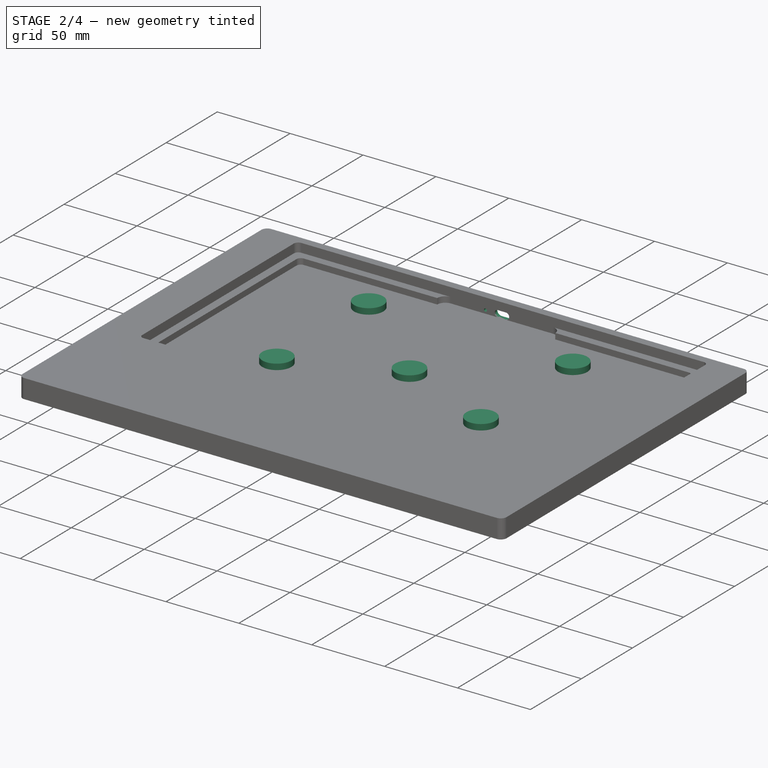
[diagram: stage 2 of 4 — iso view after this stage's code; geometry added in this stage tinted green]
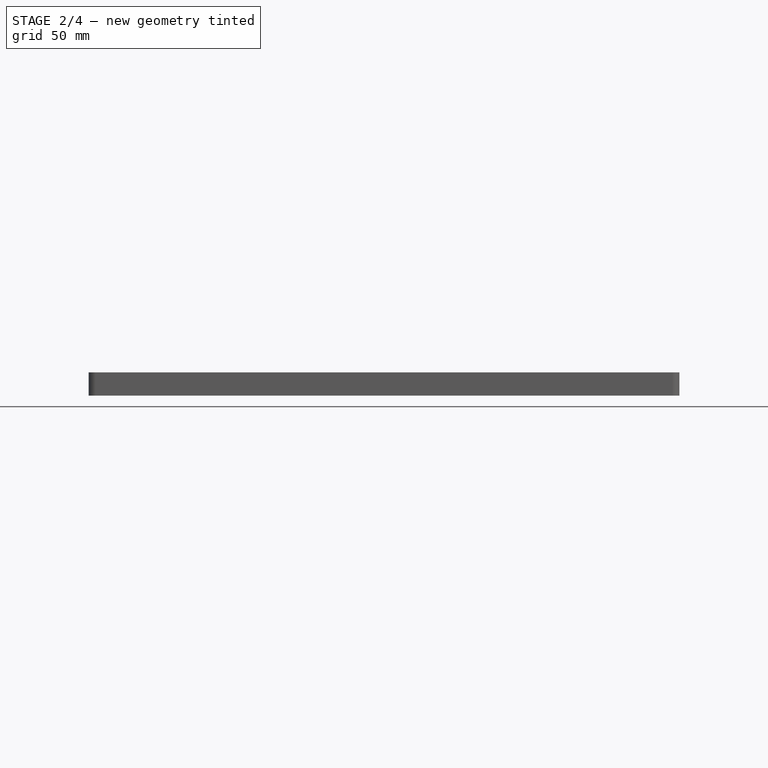
[diagram: stage 2 of 4 — front view after this stage's code; geometry added in this stage tinted green]
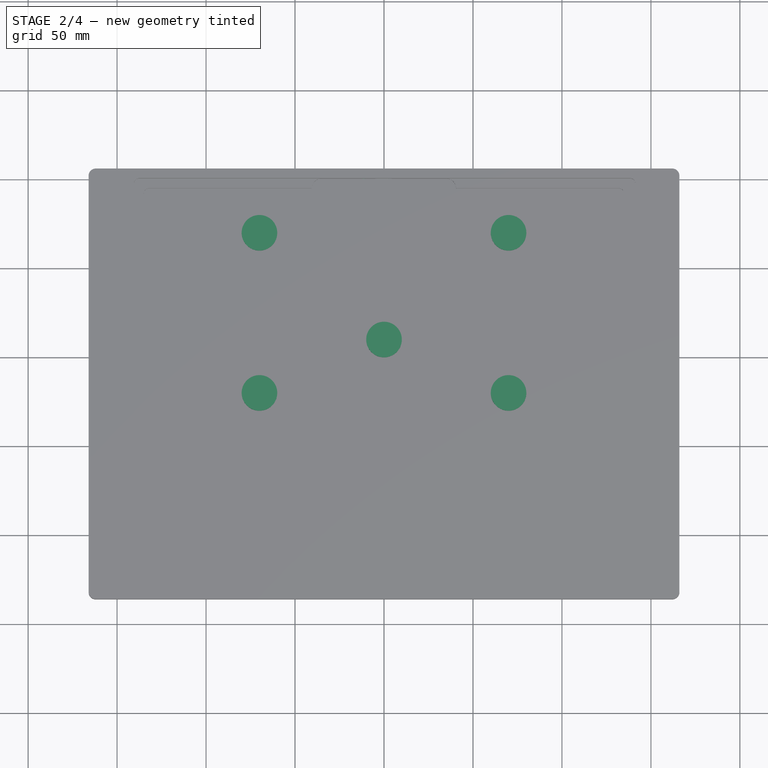
[diagram: stage 2 of 4 — top view after this stage's code; geometry added in this stage tinted green]
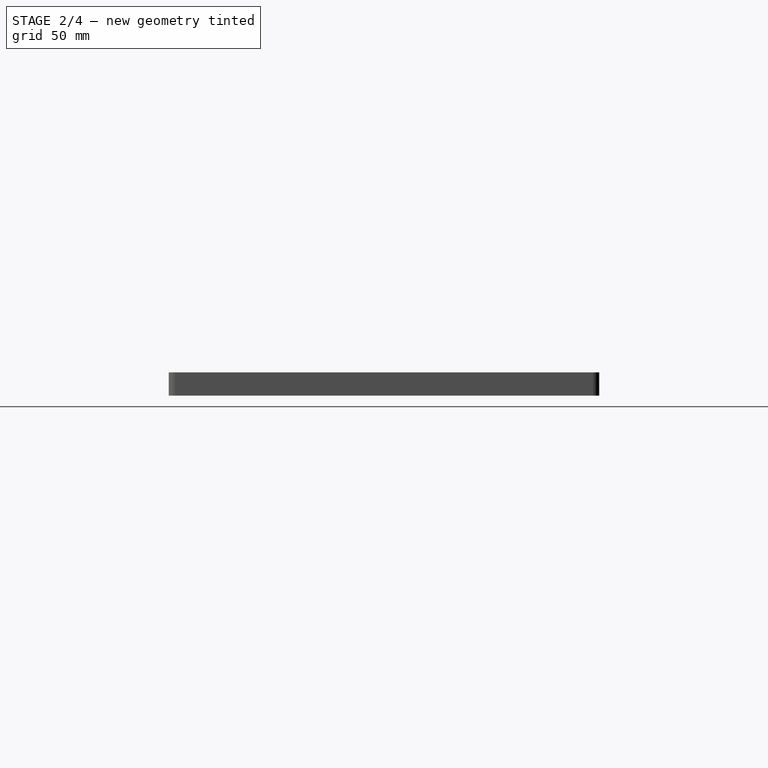
[diagram: stage 2 of 4 — right view after this stage's code; geometry added in this stage tinted green]
FEATURE [PartDesign::Pad] Pad003  label="PcbBoltSupport"
  BaseFeature = -> Pocket006
  Direction = (0,0,1)
  Length = 7
  Length2 = 10
  Profile = -> Sketch012
  ReferenceAxis = -> Sketch012 [N_Axis]
  Type = 0
  expr: Length = Spreadsheet.pcb_bottom
FEATURE [PartDesign::Pocket] Pocket003  label="ConnectorHoles"
  BaseFeature = -> Pad003
  Direction = (0,1,2e-16)
  Length = 6
  Length2 = 5
  Profile = -> Sketch015
  ReferenceAxis = -> Sketch015 [N_Axis]
  Type = 0
  expr: Length = Spreadsheet.wall_thickness
FEATURE [PartDesign::Pocket] Pocket004  label="ConnectorMargin"
  BaseFeature = -> Pocket003
  Direction = (0,1,2e-16)
  Length = 4.1
  Length2 = 5
  Profile = -> Sketch016
  ReferenceAxis = -> Sketch016 [N_Axis]
  Type = 0
  expr: Length = Spreadsheet.wall_thickness - 1.9 mm
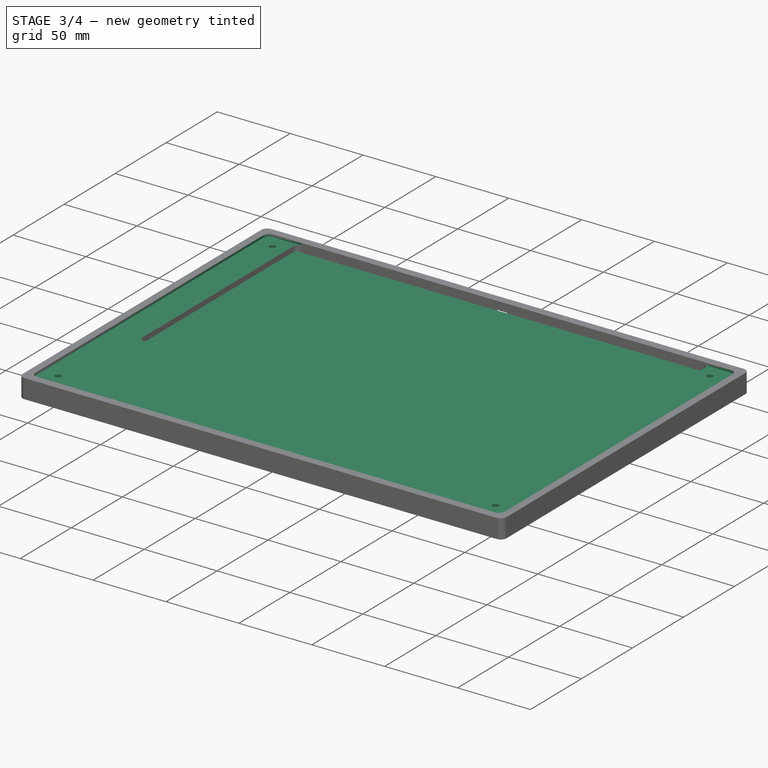
[diagram: stage 3 of 4 — iso view after this stage's code; geometry added in this stage tinted green]
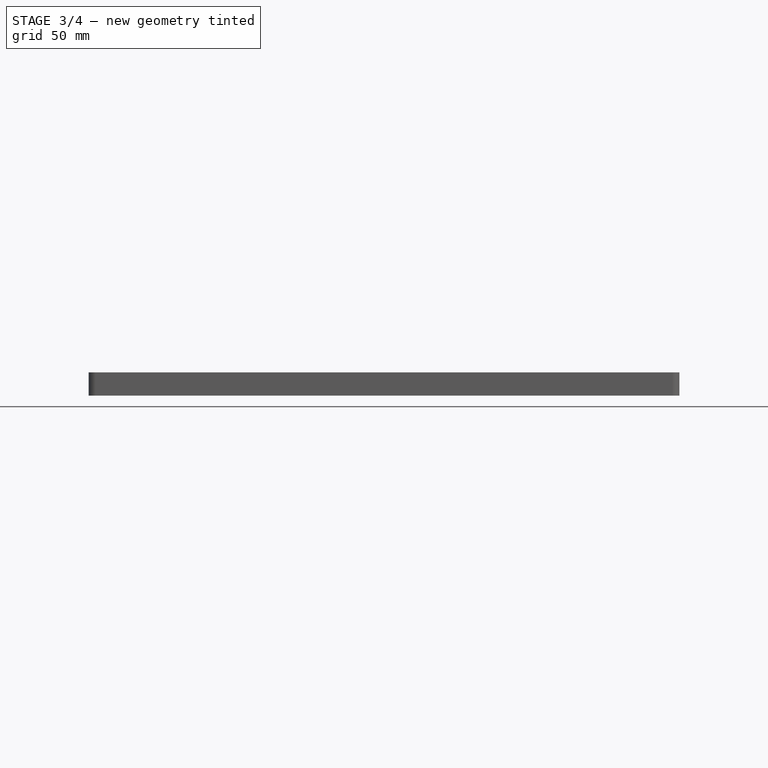
[diagram: stage 3 of 4 — front view after this stage's code; geometry added in this stage tinted green]
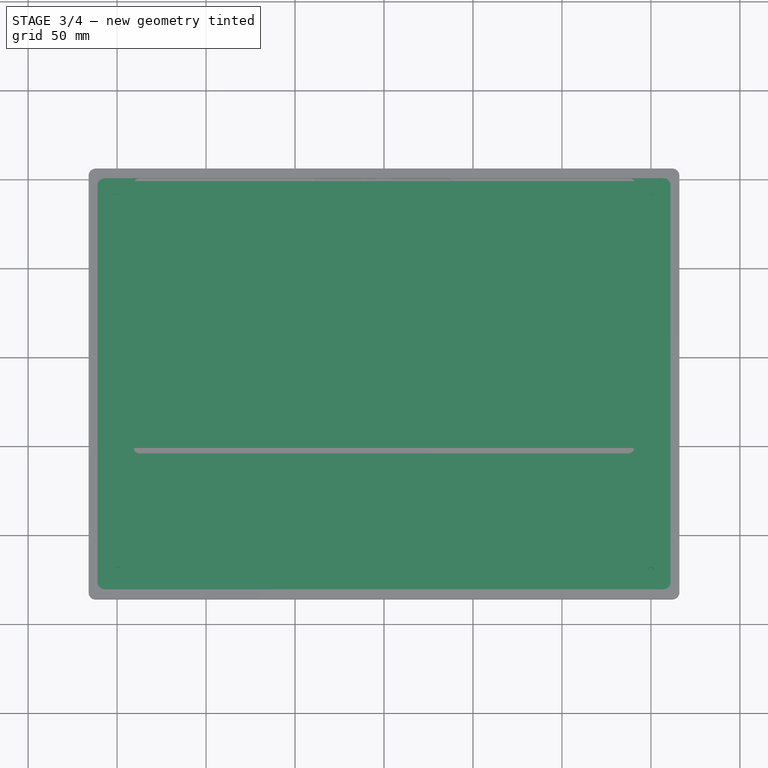
[diagram: stage 3 of 4 — top view after this stage's code; geometry added in this stage tinted green]
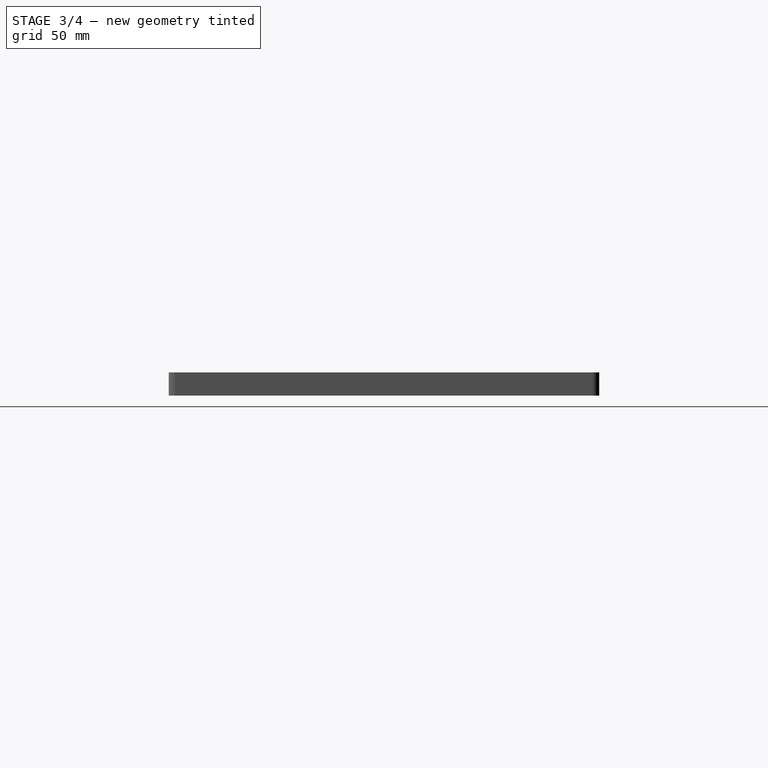
[diagram: stage 3 of 4 — right view after this stage's code; geometry added in this stage tinted green]
FEATURE [Spreadsheet::Sheet] Spreadsheet
  cells = A1='wall_thickness; B1(wall_thickness)==ceil_wall_thickness + ceil_holder_thickness; A2='usb_wall_thickness; B2(usb_wall_thickness)==$B$3 + $B$4; A3='usb_dump; B3==0.5 mm; A4='usb_mas_gap; B4==1.5 mm; A5='box_thickness; B5(box_thickness)==topplate_alt + topplate_thickness; A6='pcb_top_to_topplate_top; B6(pcb_top_to_topplate_top)==5.1 mm; C6='https://ae01.alicdn.com/kf/S6de507808860464e940a03270d6d7923Y.png; A7='pcb_thickness; B7(pcb_thickness)==1 mm; A8='bottom_space; B8(bottom_space)==4 mm; A9='ceil_wall_thickness; B9(ceil_wall_thickness)==3 mm; A10='ceil_holder_thickness; B10(ceil_holder_thickness)==3 mm; A11='pcb_width; B11(pcb_width)==280 mm; A12='pcb_height; B12(pcb_height)==150 mm; A13='box_width; B13(box_width)==topplate_width + wall_thickness * 2; A14='box_height; B14(box_height)==topplate_height + wall_thickness * 2; A15='box_bottom_thickness; B15(box_bottom_thickness)==3 mm; A16='fillet_phi; B16(fillet_phi)==3 mm; A17='fillet_addition; B17(fillet_addition)==B$16 - B$16 / sqrt(2); A18='fillet_radius; B18(fillet_radius)==B16 / 2; A19='M2_5_hole_phi; B19(M2_5_hole_phi)==2.8 mm; A20='mounting_phi; B20(mounting_phi)==12 mm; A21='bottom_to_pcb_bottom; B21(bottom_to_pcb_bottom)==box_bottom_thickness + bottom_space; A22='bottom_to_top_plate_bottom; B22(bottom_to_top_plate_bottom)==bottom_to_pcb_bottom + pcb_thickness + pcb_top_to_topplate_top - topplate_thickness; A23='topplate_thickness; B23(topplate_thickness)==1.6 mm; A24='pcb_top_to_ceil_top; B24(pcb_top_to_ceil_top)==13.7 mm; C24='Distance between the top of button and the bottom of switch; A25='ceil_thickness; B25(ceil_thickness)==8 mm; A26='topplate_alt; B26(topplate_alt)==box_bottom_thickness + bottom_space + pcb_thickness + pcb_top_to_topplate_top - topplate_thickness; A27='ceil_width; B27(ceil_width)==box_width - ceil_wall_thickness * 2; A28='ceil_height; B28(ceil_height)==pcb_height + ceil_holder_thickness; A29='nut_hole_thickness; B29(nut_hole_thickness)==3 mm; C29=' nut thickness is 2mm; A30='M2_5_nut_width; B30(M2_5_nut_width)==5.2 mm; C30='5mm + margin; A31='ceil_margin; B31(ceil_margin)==1 mm; A32='M2_5_head_phi; B32(M2_5_head_phi)==6.5 mm; C32='4.5mm + margin, washer's phi = 6.0; A33='switch_phi; B33(switch_phi)==22 mm; A34='shallow_hole_thickness; B34(shallow_hole_thickness)==1.5 mm; A35='pcb_bottom; B35(pcb_bottom)==box_bottom_thickness + bottom_space; A36='pocket_width; B36(pocket_width)==topplate_width; A37='pocket_height; B37(pocket_height)==topplate_height; A38='topplate_width; B38(topplate_width)==320 mm; A39='topplate_height; B39(topplate_height)==230 mm; A40='topplate_holder_thickness; B40(topplate_holder_thickness)==5 mm
FEATURE [Sketcher::SketchObject] Sketch007
  FullyConstrained = true
  MapMode = 5
  Support = -> [XY_Plane012]
  expr: Constraints[15] = Spreadsheet.ceil_height - Spreadsheet.ceil_margin * 2
  expr: Constraints[16] = Spreadsheet.ceil_width / 2 - Spreadsheet.ceil_margin
  expr: Constraints[18] = Spreadsheet.ceil_margin
  sketch-geometry (8):
    g0: LineSegment StartX=-159 StartY=-1 StartZ=0 EndX=159 EndY=-1 EndZ=0
    g1: LineSegment StartX=162 StartY=-4 StartZ=0 EndX=162 EndY=-148 EndZ=0
    g2: LineSegment StartX=159 StartY=-151 StartZ=0 EndX=-159 EndY=-151 EndZ=0
    g3: LineSegment StartX=-162 StartY=-148 StartZ=0 EndX=-162 EndY=-4 EndZ=0
    g4: ArcOfCircle CenterX=-159 CenterY=-4 CenterZ=0 NormalX=0 NormalY=0 NormalZ=1 AngleXU=0 Radius=3 StartAngle=1.5708 EndAngle=3.14159
    g5: ArcOfCircle CenterX=-159 CenterY=-148 CenterZ=0 NormalX=0 NormalY=0 NormalZ=1 AngleXU=0 Radius=3 StartAngle=3.14159 EndAngle=4.71239
    g6: ArcOfCircle CenterX=159 CenterY=-148 CenterZ=0 NormalX=0 NormalY=0 NormalZ=1 AngleXU=0 Radius=3 StartAngle=4.71239 EndAngle=6.28319
    g7: ArcOfCircle CenterX=159 CenterY=-4 CenterZ=0 NormalX=0 NormalY=0 NormalZ=1 AngleXU=0 Radius=3 StartAngle=0 EndAngle=1.5708
  constraints (19):
    c: Horizontal(g0)
    c: Horizontal(g2)
    c: Vertical(g1)
    c: Vertical(g3)
    c: Tangent(g3,g4) = 1.5708
    c: Tangent(g0,g4) = 1.5708
    c: Tangent(g3,g5) = 1.5708
    c: Tangent(g2,g5) = 1.5708
    c: Tangent(g2,g6) = 1.5708
    c: Tangent(g1,g6) = 1.5708
    c: Tangent(g0,g7) = 1.5708
    c: Tangent(g1,g7) = 1.5708
    c: Radius(g7) = 3
    c: Equal(g4,g5)
    c: Equal(g5,g6)
    c: Distance(g-1,g2) = 151
    c: Distance(g-1,g3) = 162
    c: Symmetric(g3,g1,g-2)
    c: Distance(g-1,g0) = 1
FEATURE [PartDesign::Pad] Pad002  label="CeilPad"
  Direction = (0,0,1)
  Length = 8
  Length2 = 10
  Profile = -> Sketch007
  ReferenceAxis = -> Sketch007 [N_Axis]
  Type = 0
  expr: Length = Spreadsheet.ceil_thickness
FEATURE [PartDesign::Pocket] Pocket001  label="BoltSpace"
  BaseFeature = -> Pocket004
  Direction = (0,0,-1)
  Length = 4
  Length2 = 5
  Profile = -> Sketch013
  ReferenceAxis = -> Sketch013 [N_Axis]
  Type = 0
  expr: Length = 4 mm
FEATURE [PartDesign::Pocket] Pocket002  label="TopplatePocket"
  BaseFeature = -> Pocket001
  Direction = (0,0,-1)
  Length = 1.6
  Length2 = 5
  Profile = -> Sketch014
  ReferenceAxis = -> Sketch014 [N_Axis]
  Type = 0
  expr: Length = Spreadsheet.topplate_thickness
FEATURE [PartDesign::Pocket] Pocket005  label="InsertNutHoles"
  BaseFeature = -> Pocket002
  Direction = (0,0,-1)
  Length = 5.5
  Length2 = 5
  Profile = -> Sketch017
  ReferenceAxis = -> Sketch017 [N_Axis]
  Type = 0
FEATURE [PartDesign::Body] Body
  Group = -> [Sketch,Pad,Sketch001,Pocket,Sketch012,Sketch018,Pocket006,Pad003,Sketch013,Sketch015,Pocket003,Sketch016,Pocket004,Sketch017,Pocket001,Sketch014,Pocket002,Pocket005]
  Origin = -> Origin
  Tip = -> Pocket005
FEATURE [App::Part] Part
  Group = -> [Body]
  Origin = -> Origin013
FEATURE [App::DocumentObjectGroup] Parts
  Group = -> [Body]
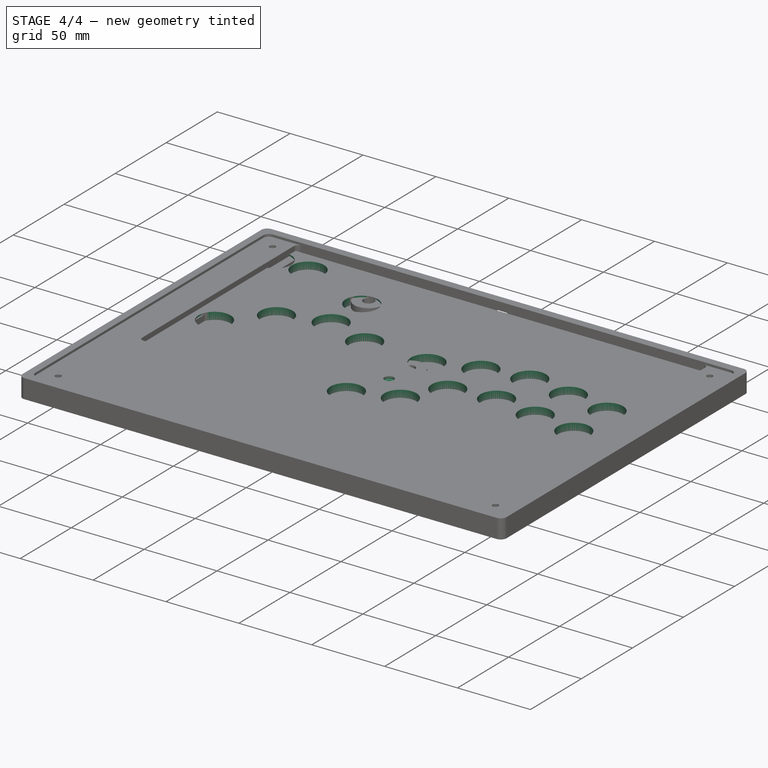
[diagram: stage 4 of 4 — iso view after this stage's code; geometry added in this stage tinted green]
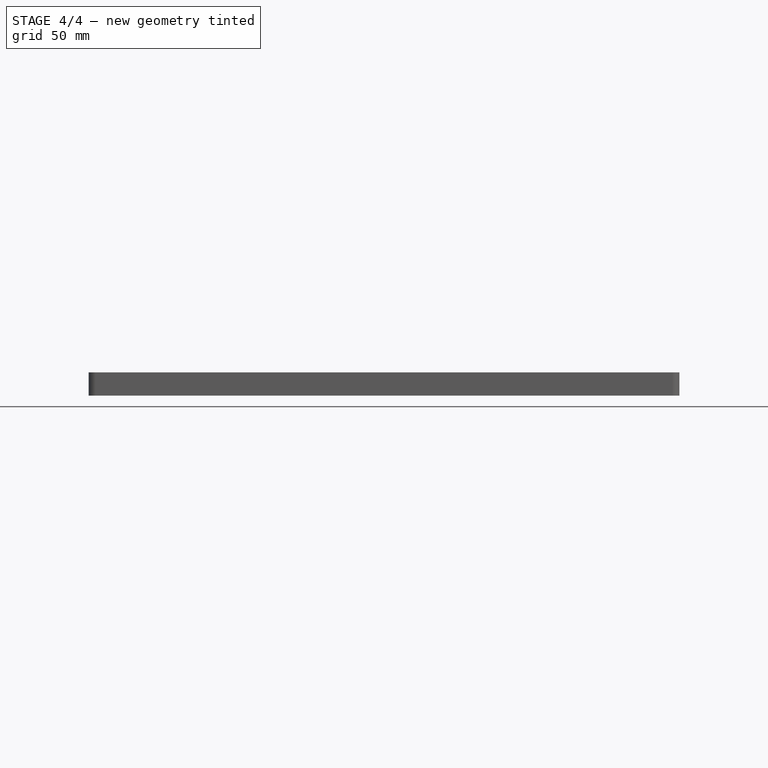
[diagram: stage 4 of 4 — front view after this stage's code; geometry added in this stage tinted green]
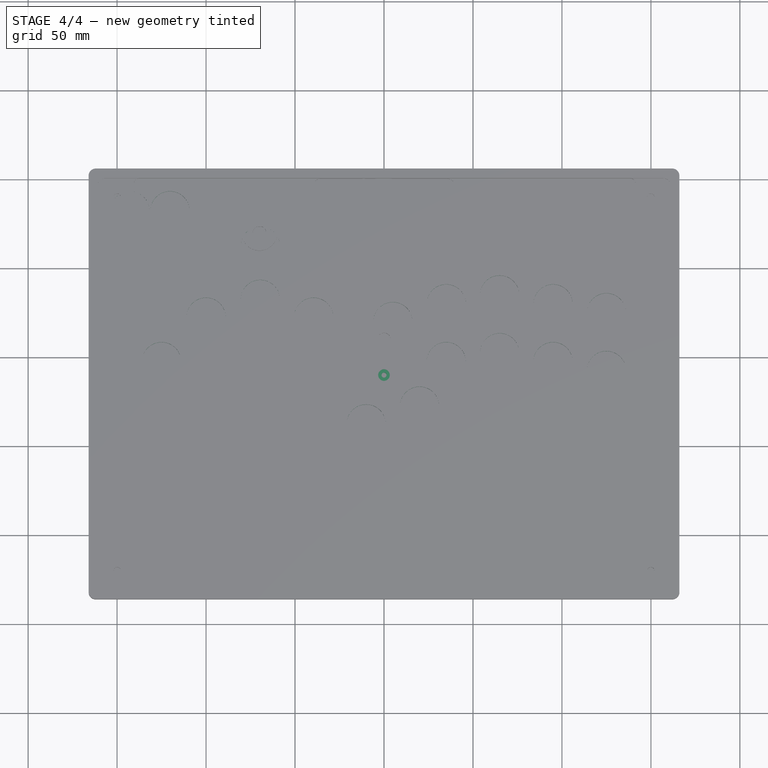
[diagram: stage 4 of 4 — top view after this stage's code; geometry added in this stage tinted green]
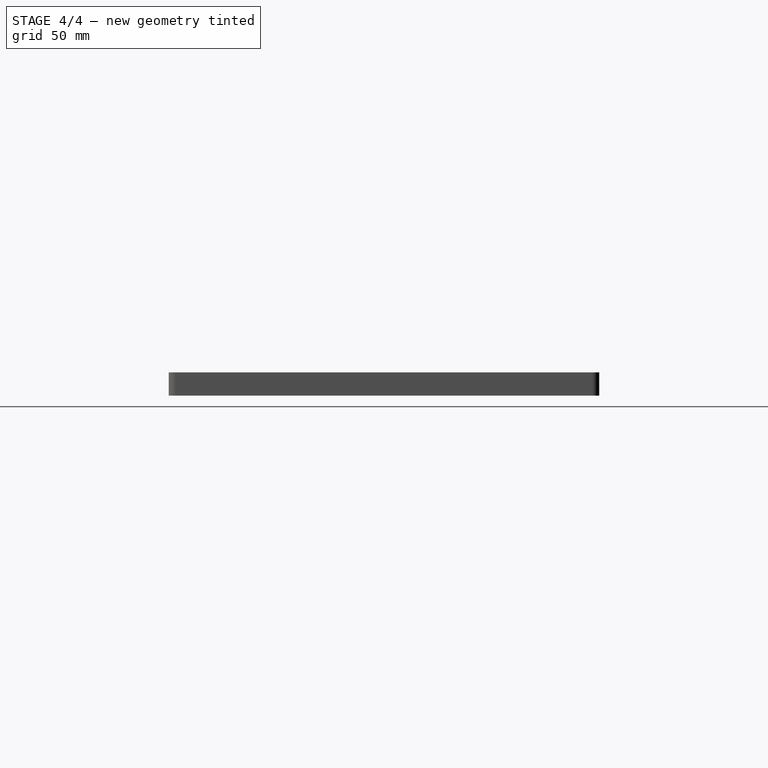
[diagram: stage 4 of 4 — right view after this stage's code; geometry added in this stage tinted green]
FEATURE [Sketcher::SketchObject] Sketch008  label="CeilSwitchHolesSketch"
  FullyConstrained = true
  MapMode = 5
  Support = -> [XY_Plane012]
  expr: Constraints[0] = Spreadsheet.switch_phi
  sketch-geometry (23):
    g0: Circle CenterX=-142.75 CenterY=-17.7 CenterZ=0 NormalX=0 NormalY=0 NormalZ=1 AngleXU=0 Radius=11
    g1: Circle CenterX=-120.25 CenterY=-17.7 CenterZ=0 NormalX=0 NormalY=0 NormalZ=1 AngleXU=0 Radius=11
    g2: LineSegment StartX=-142.75 StartY=-28.7 StartZ=0 EndX=-142.75 EndY=-6.7 EndZ=0
    g3: LineSegment StartX=-142.75 StartY=-6.7 StartZ=0 EndX=-120.25 EndY=-6.7 EndZ=0
    g4: LineSegment StartX=-120.25 StartY=-6.7 StartZ=0 EndX=-120.25 EndY=-28.7 EndZ=0
    g5: LineSegment StartX=-120.25 StartY=-28.7 StartZ=0 EndX=-142.75 EndY=-28.7 EndZ=0
    g6: GeomPoint X=-131.5 Y=-17.7 Z=0
    g7: Circle CenterX=-69.5 CenterY=-37.5 CenterZ=0 NormalX=0 NormalY=0 NormalZ=1 AngleXU=0 Radius=11
    g8: Circle CenterX=-69.5 CenterY=-67.5 CenterZ=0 NormalX=0 NormalY=0 NormalZ=1 AngleXU=0 Radius=11
    g9: Circle CenterX=-100 CenterY=-77.5 CenterZ=0 NormalX=0 NormalY=0 NormalZ=1 AngleXU=0 Radius=11
    g10: Circle CenterX=-125 CenterY=-102.5 CenterZ=0 NormalX=0 NormalY=0 NormalZ=1 AngleXU=0 Radius=11
    g11: Circle CenterX=-39.5 CenterY=-77.5 CenterZ=0 NormalX=0 NormalY=0 NormalZ=1 AngleXU=0 Radius=11
    g12: Circle CenterX=5 CenterY=-80 CenterZ=0 NormalX=0 NormalY=0 NormalZ=1 AngleXU=0 Radius=11
    g13: Circle CenterX=35 CenterY=-70 CenterZ=0 NormalX=0 NormalY=0 NormalZ=1 AngleXU=0 Radius=11
    g14: Circle CenterX=65 CenterY=-65 CenterZ=0 NormalX=0 NormalY=0 NormalZ=1 AngleXU=0 Radius=11
    g15: Circle CenterX=95 CenterY=-70 CenterZ=0 NormalX=0 NormalY=0 NormalZ=1 AngleXU=0 Radius=11
    g16: Circle CenterX=125 CenterY=-75 CenterZ=0 NormalX=0 NormalY=0 NormalZ=1 AngleXU=0 Radius=11
    g17: Circle CenterX=-10 CenterY=-137.5 CenterZ=0 NormalX=0 NormalY=0 NormalZ=1 AngleXU=0 Radius=11
    g18: Circle CenterX=20 CenterY=-127.5 CenterZ=0 NormalX=0 NormalY=0 NormalZ=1 AngleXU=0 Radius=11
    g19: Circle CenterX=35 CenterY=-102.5 CenterZ=0 NormalX=0 NormalY=0 NormalZ=1 AngleXU=0 Radius=11
    g20: Circle CenterX=65 CenterY=-97.5 CenterZ=0 NormalX=0 NormalY=0 NormalZ=1 AngleXU=0 Radius=11
    g21: Circle CenterX=95 CenterY=-102.5 CenterZ=0 NormalX=0 NormalY=0 NormalZ=1 AngleXU=0 Radius=11
    g22: Circle CenterX=125 CenterY=-107.5 CenterZ=0 NormalX=0 NormalY=0 NormalZ=1 AngleXU=0 Radius=11
  constraints (66):
    c: Diameter(g0) = 22
    c: DistanceY(g0) = -17.7
    c: DistanceX(g0) = -142.75
    c: Equal(g0,g1) = 22
    c: Horizontal(g1,g0)
    c: DistanceX(g1) = -120.25
    c: Coincident(g2,g3)
    c: Coincident(g3,g4)
    c: Coincident(g4,g5)
    c: Coincident(g5,g2)
    c: Horizontal(g3)
    c: Horizontal(g5)
    c: Vertical(g2)
    c: Vertical(g4)
    c: Symmetric(g3,g2,g6)
    c: Symmetric(g1,g0,g6)
    c: PointOnObject(g3,g1)
    c: PointOnObject(g0,g2)
    c: Vertical(g8,g7)
    c: DistanceX(g7) = -69.5
    c: DistanceY(g7) = -37.5
    c: DistanceY(g8) = -67.5
    c: Equal(g8,g7)
    c: Equal(g7,g9)
    c: Equal(g9,g10)
    c: Equal(g10,g11)
    c: Equal(g11,g1)
    c: DistanceY(g10) = -102.5
    c: DistanceX(g10) = -125
    c: DistanceX(g9) = -100
    c: DistanceY(g9) = -77.5
    c: DistanceX(g11) = -39.5
    c: DistanceY(g11) = -77.5
    c: DistanceX(g17) = -10
    c: DistanceY(g17) = -137.5
    c: DistanceY(g18) = -127.5
    c: DistanceX(g18) = 20
    c: Equal(g17,g18)
    c: Equal(g18,g12)
    c: Equal(g12,g13)
    c: Equal(g13,g14)
    c: Equal(g14,g19)
    c: Equal(g19,g20)
    c: Equal(g20,g21)
    c: Equal(g21,g15)
    c: Equal(g15,g16)
    c: Equal(g16,g22)
    c: Equal(g22,g11)
    c: DistanceX(g19) = 35
    c: DistanceY(g19) = -102.5
    c: DistanceX(g20) = 65
    c: DistanceY(g20) = -97.5
    c: DistanceX(g13) = 35
    c: DistanceY(g13) = -70
    c: DistanceX(g12) = 5
    c: DistanceY(g12) = -80
    c: DistanceX(g14) = 65
    c: DistanceY(g14) = -65
    c: DistanceX(g15) = 95
    c: DistanceY(g15) = -70
    c: DistanceX(g21) = 95
    c: DistanceY(g21) = -102.5
    c: DistanceY(g16) = -75
    c: DistanceX(g16) = 125
    c: DistanceX(g22) = 125
    c: DistanceY(g22) = -107.5
FEATURE [Sketcher::SketchObject] Sketch009  label="CeilScrewHolesSketch"
  FullyConstrained = true
  MapMode = 5
  Support = -> [XY_Plane012]
  expr: Constraints[3] = Spreadsheet.M2_5_head_phi
  sketch-geometry (6):
    g0: Circle CenterX=0 CenterY=-210 CenterZ=0 NormalX=0 NormalY=0 NormalZ=1 AngleXU=0 Radius=3.25
    g1: Circle CenterX=160 CenterY=-210 CenterZ=0 NormalX=0 NormalY=0 NormalZ=1 AngleXU=0 Radius=3.25
    g2: Circle CenterX=160 CenterY=-10 CenterZ=0 NormalX=0 NormalY=0 NormalZ=1 AngleXU=0 Radius=3.25
    g3: Circle CenterX=-160 CenterY=-210 CenterZ=0 NormalX=0 NormalY=0 NormalZ=1 AngleXU=0 Radius=2.5
    g4: Circle CenterX=-160 CenterY=-10 CenterZ=0 NormalX=0 NormalY=0 NormalZ=1 AngleXU=0 Radius=2.5
    g5: Circle CenterX=0 CenterY=-110 CenterZ=0 NormalX=0 NormalY=0 NormalZ=1 AngleXU=0 Radius=3.25
  constraints (18):
    c: DistanceY(g0) = -210
    c: DistanceX(g1) = 160
    c: Horizontal(g1,g0)
    c: Diameter(g1) = 6.5
    c: Equal(g1,g2) = 5
    c: Vertical(g2,g1)
    c: DistanceY(g2) = -10
    c: Diameter(g3) = 5
    c: Equal(g3,g4) = 5
    c: DistanceX(g3) = -160
    c: Horizontal(g4,g2)
    c: Horizontal(g3,g1)
    c: Vertical(g4,g3)
    c: PointOnObject(g0,g-2)
    c: Equal(g0,g1)
    c: PointOnObject(g5,g-2)
    c: Equal(g5,g0)
    c: DistanceY(g5) = -110
FEATURE [PartDesign::Hole] Hole001
  BaseFeature = -> Pad002
  CustomThreadClearance = 0
  Depth = 8
  DepthType = 0
  Diameter = 22
  DrillForDepth = false
  DrillPoint = 0
  DrillPointAngle = 118
  HoleCutCountersinkAngle = 90
  HoleCutCustomValues = false
  HoleCutDepth = 0
  HoleCutDiameter = 0
  HoleCutType = 0
  ModelThread = false
  Profile = -> Sketch008
  Reversed = true
  Tapered = false
  TaperedAngle = 90
  ThreadClass = 0
  ThreadDepth = 8
  ThreadDepthType = 0
  ThreadDirection = 0
  ThreadFit = 0
  ThreadSize = 0
  ThreadType = 0
  Threaded = false
  UseCustomThreadClearance = false
  expr: Depth = Spreadsheet.ceil_thickness
  expr: Diameter = Spreadsheet.switch_phi
FEATURE [PartDesign::Hole] Hole002
  BaseFeature = -> Hole001
  CustomThreadClearance = 0
  Depth = 8
  DepthType = 0
  Diameter = 2.8
  DrillForDepth = false
  DrillPoint = 0
  DrillPointAngle = 118
  HoleCutCountersinkAngle = 90
  HoleCutCustomValues = false
  HoleCutDepth = 0
  HoleCutDiameter = 6.1
  HoleCutType = 0
  ModelThread = false
  Profile = -> Sketch009
  Reversed = true
  Tapered = false
  TaperedAngle = 90
  ThreadClass = 0
  ThreadDepth = 8
  ThreadDepthType = 0
  ThreadDirection = 0
  ThreadFit = 0
  ThreadSize = 0
  ThreadType = 0
  Threaded = false
  UseCustomThreadClearance = false
  expr: Depth = Spreadsheet.ceil_thickness
  expr: Diameter = Spreadsheet.M2_5_hole_phi
FEATURE [Sketcher::SketchObject] Sketch010  label="CeilCenterScrewHolesSketch"
  AttachmentOffset = pos=(0,0,8) rot=(0,0,1;3.14159rad)
  FullyConstrained = true
  MapMode = 5
  Placement = pos=(0,0,8) rot=(0,0,1;3.14159rad)
  Support = -> [XY_Plane012]
  expr: .AttachmentOffset.Base.z = Spreadsheet.ceil_thickness
  expr: Constraints[2] = Spreadsheet.M2_5_head_phi
  sketch-geometry (1):
    g0: Circle CenterX=0 CenterY=110 CenterZ=0 NormalX=0 NormalY=0 NormalZ=1 AngleXU=0 Radius=3.25
  constraints (3):
    c: PointOnObject(g0,g-2)
    c: DistanceY(g0) = 110
    c: Diameter(g0) = 6.5
FEATURE [PartDesign::Hole] Hole003
  BaseFeature = -> Hole002
  CustomThreadClearance = 0
  Depth = 1.7
  DepthType = 0
  Diameter = 6.5
  DrillForDepth = false
  DrillPoint = 0
  DrillPointAngle = 118
  HoleCutCountersinkAngle = 90
  HoleCutCustomValues = false
  HoleCutDepth = 0
  HoleCutDiameter = 0
  HoleCutType = 0
  ModelThread = false
  Profile = -> Sketch010
  Tapered = false
  TaperedAngle = 90
  ThreadClass = 0
  ThreadDepth = 1.7
  ThreadDepthType = 0
  ThreadDirection = 0
  ThreadFit = 0
  ThreadSize = 0
  ThreadType = 0
  Threaded = false
  UseCustomThreadClearance = false
  expr: Depth = 1.7 mm
  expr: Diameter = Spreadsheet.M2_5_head_phi
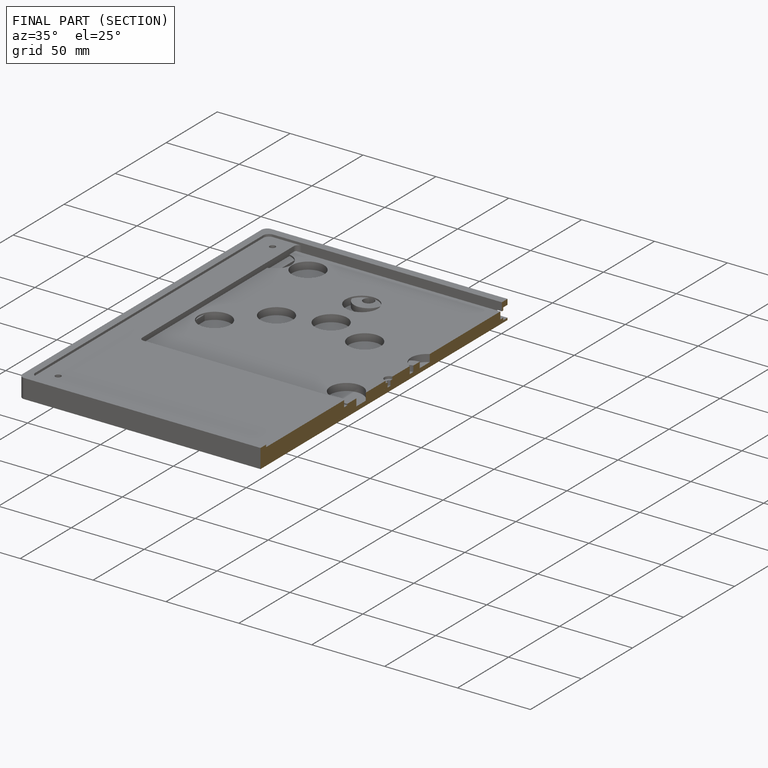
[diagram: finished part — half-section view (interior)]
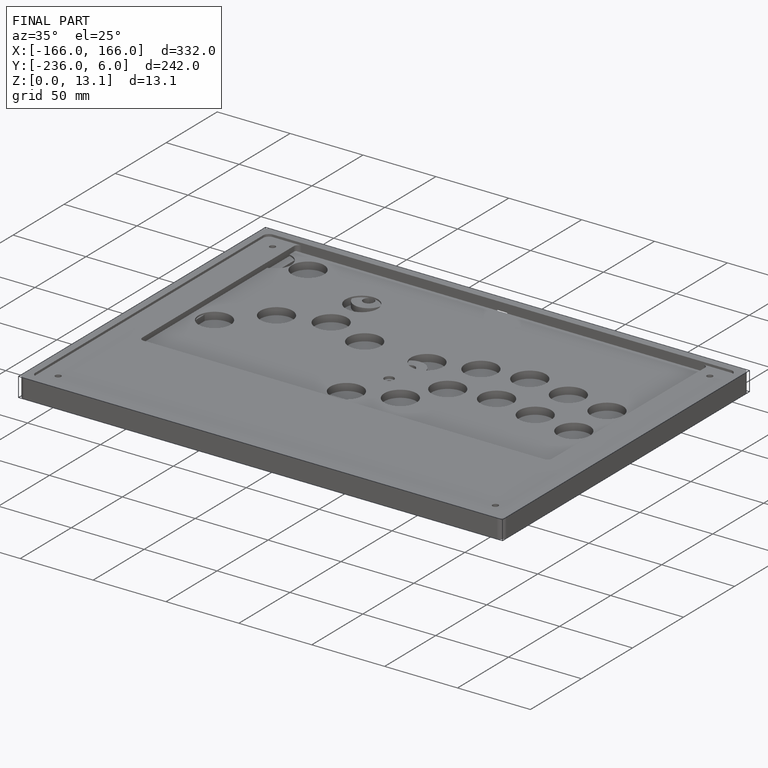
[diagram: finished part — iso view with bounding-box wireframe]
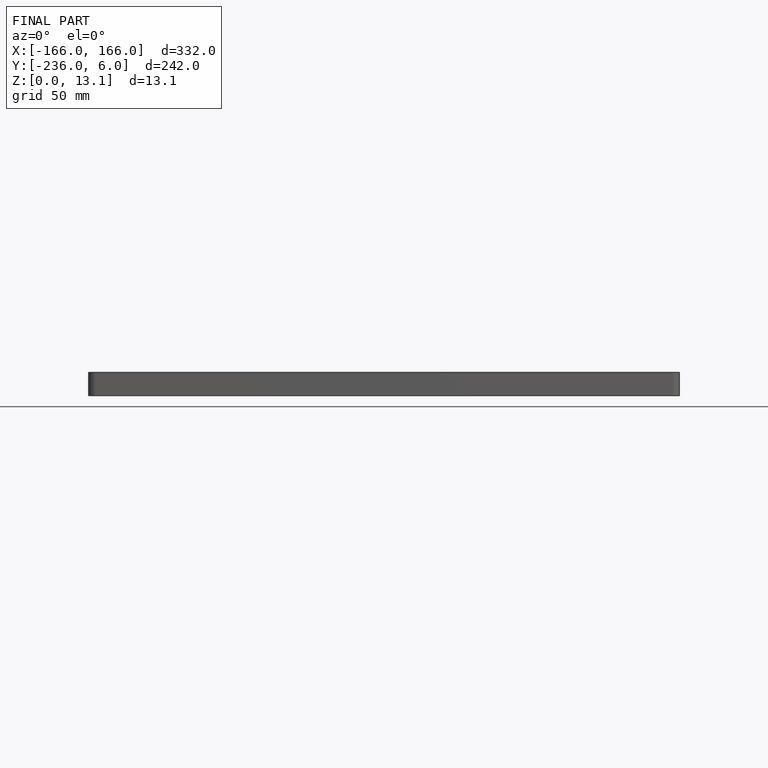
[diagram: finished part — front view with bounding-box wireframe]
